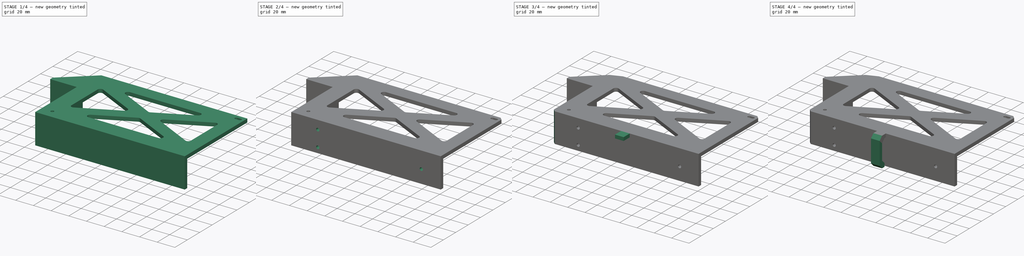
[diagram: build sequence overview — one tinted view per stage of 4, left to right]
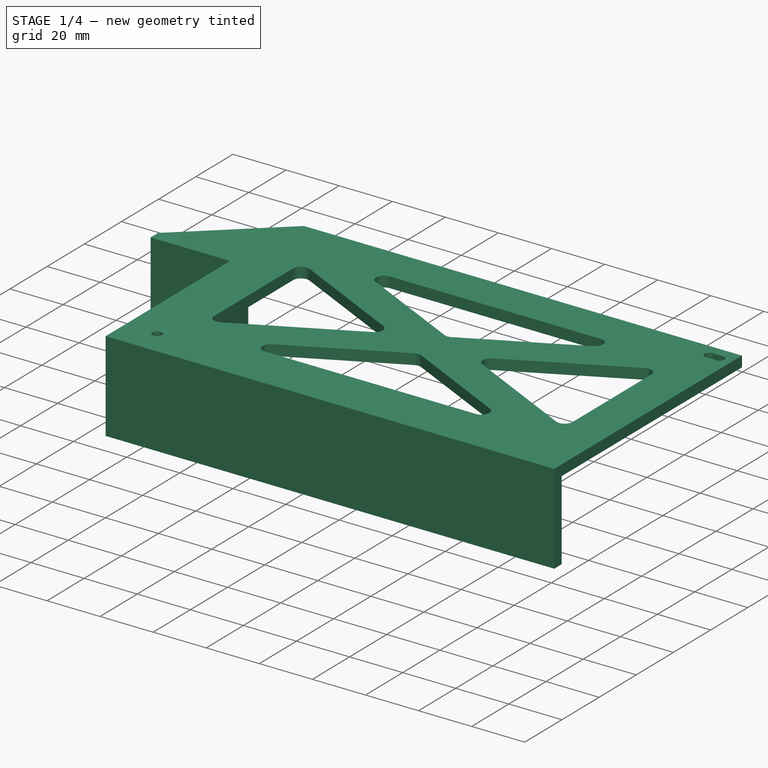
[diagram: stage 1 of 4 — iso view after this stage's code; geometry added in this stage tinted green]
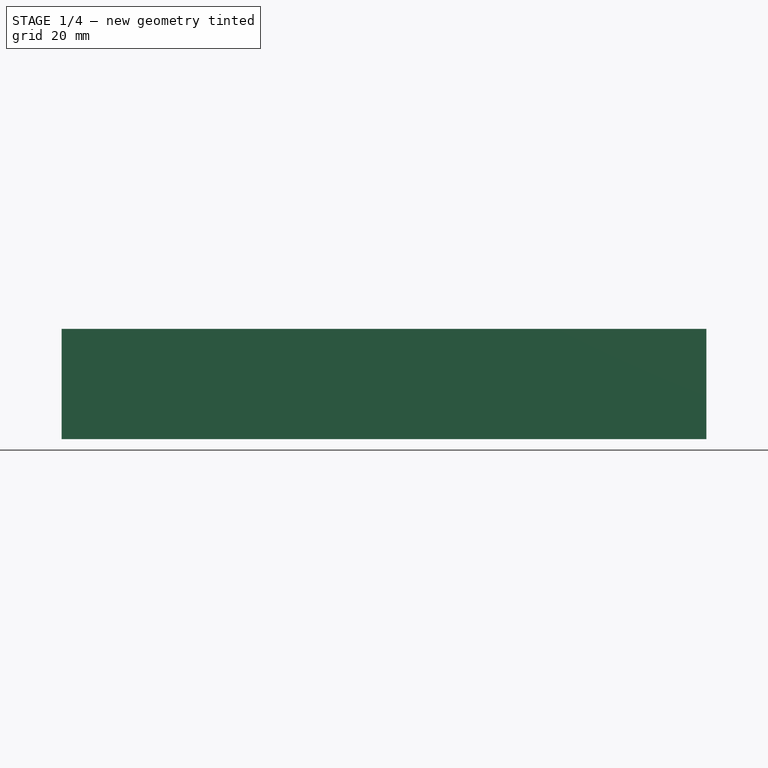
[diagram: stage 1 of 4 — front view after this stage's code; geometry added in this stage tinted green]
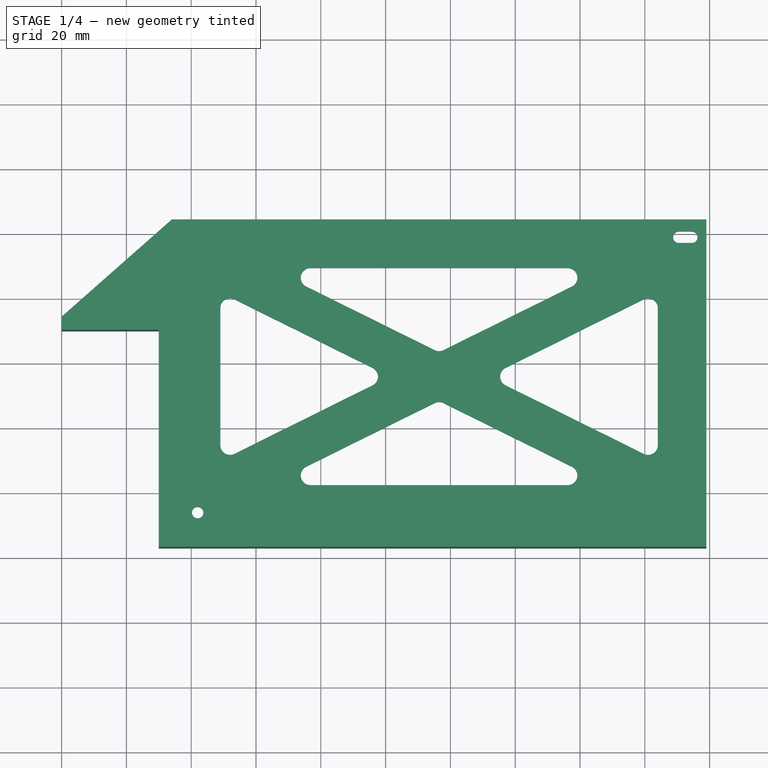
[diagram: stage 1 of 4 — top view after this stage's code; geometry added in this stage tinted green]
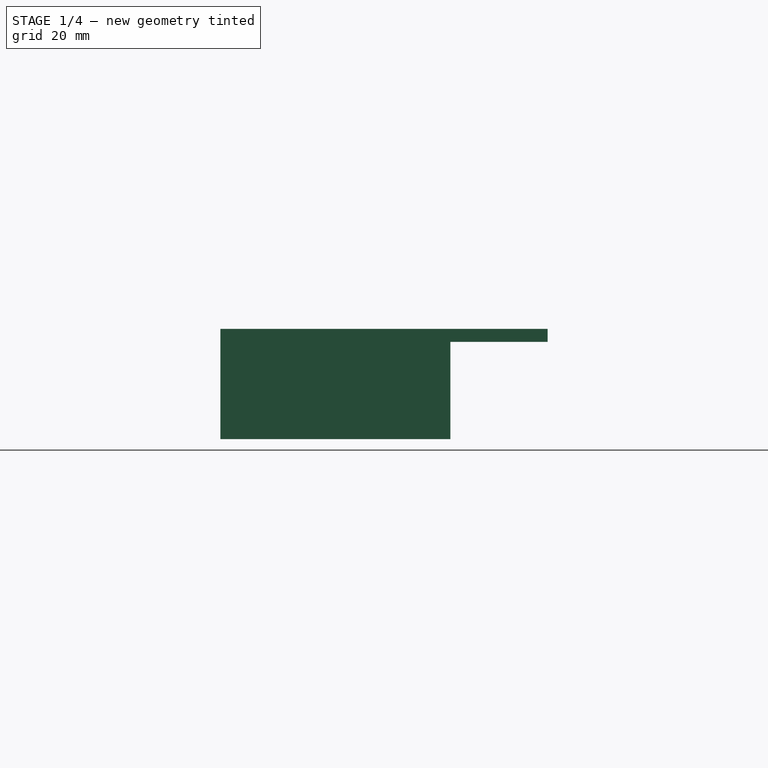
[diagram: stage 1 of 4 — right view after this stage's code; geometry added in this stage tinted green]
FCSTD DOCUMENT  (FreeCAD 1.0R39285 (Git))
Label: power-supply-bracket
License: All rights reserved
LicenseURL: https://en.wikipedia.org/wiki/All_rights_reserved
objects: Sketcher::SketchObject×9, PartDesign::Pad×5, PartDesign::Chamfer×4, PartDesign::Hole×2, PartDesign::Fillet×1, PartDesign::Body×1, App::Part×1
note: 55 computed .brp shape members not serialized (recipe doc carries the construction recipe); baked Part::Feature solids carry a one-line shape summary decoded from their .brp

FEATURE [Sketcher::SketchObject] Sketch
  ArcFitTolerance = 1e-06
  AttachmentSupport = -> [XY_Plane]
  FullyConstrained = true
  MakeInternals = false
  MapMode = 5
  sketch-geometry (106):
    g0: LineSegment [constr] StartX=0 StartY=0 StartZ=0 EndX=30 EndY=0 EndZ=0
    g1: LineSegment StartX=30 StartY=0 StartZ=0 EndX=30 EndY=30 EndZ=0
    g2: LineSegment StartX=30 StartY=30 StartZ=0 EndX=0 EndY=30 EndZ=0
    g3: LineSegment [constr] StartX=0 StartY=30 StartZ=0 EndX=0 EndY=0 EndZ=0
    g4: LineSegment StartX=0 StartY=30 StartZ=0 EndX=0 EndY=34 EndZ=0
    g5: LineSegment [constr] StartX=0 StartY=34 StartZ=0 EndX=34 EndY=34 EndZ=0
    g6: LineSegment [constr] StartX=34 StartY=34 StartZ=0 EndX=34 EndY=0 EndZ=0
    g7: LineSegment [constr] StartX=34 StartY=0 StartZ=0 EndX=30 EndY=0 EndZ=0
    g8: LineSegment [constr] StartX=34 StartY=34 StartZ=0 EndX=34 EndY=64 EndZ=0
    g9: LineSegment StartX=0 StartY=34 StartZ=0 EndX=34 EndY=64 EndZ=0
    g10: LineSegment [constr] StartX=34 StartY=64 StartZ=0 EndX=34 EndY=-33 EndZ=0
    g11: LineSegment [constr] StartX=34 StartY=-33 StartZ=0 EndX=199 EndY=-33 EndZ=0
    g12: LineSegment StartX=199 StartY=-33 StartZ=0 EndX=199 EndY=64 EndZ=0
    g13: LineSegment StartX=199 StartY=64 StartZ=0 EndX=34 EndY=64 EndZ=0
    g14: LineSegment [constr] StartX=34 StartY=64 StartZ=0 EndX=34 EndY=58.5 EndZ=0
    g15: LineSegment [constr] StartX=44.5 StartY=64 StartZ=0 EndX=34 EndY=64 EndZ=0
    g16: LineSegment [constr] StartX=199 StartY=-33 StartZ=0 EndX=199 EndY=-26.5 EndZ=0
    g17: LineSegment [constr] StartX=199 StartY=-26.5 StartZ=0 EndX=196 EndY=-26.5 EndZ=0
    g18: LineSegment [constr] StartX=196 StartY=-26.5 StartZ=0 EndX=196 EndY=-33 EndZ=0
    g19: LineSegment [constr] StartX=196 StartY=-33 StartZ=0 EndX=199 EndY=-33 EndZ=0
    g20: LineSegment [constr] StartX=199 StartY=64 StartZ=0 EndX=40 EndY=64 EndZ=0
    g21: LineSegment [constr] StartX=40 StartY=64 StartZ=0 EndX=40 EndY=-33 EndZ=0
    g22: LineSegment [constr] StartX=40 StartY=-33 StartZ=0 EndX=199 EndY=-33 EndZ=0
    g23: LineSegment [constr] StartX=199 StartY=-33 StartZ=0 EndX=199 EndY=64 EndZ=0
    g24: LineSegment [constr] StartX=40 StartY=64 StartZ=0 EndX=40 EndY=58.5 EndZ=0
    g25: LineSegment [constr] StartX=40 StartY=58.5 StartZ=0 EndX=44.5 EndY=58.5 EndZ=0
    g26: LineSegment [constr] StartX=44.5 StartY=58.5 StartZ=0 EndX=44.5 EndY=64 EndZ=0
    g27: LineSegment [constr] StartX=44.5 StartY=64 StartZ=0 EndX=40 EndY=64 EndZ=0
    g28: LineSegment [constr] StartX=34 StartY=-33 StartZ=0 EndX=30 EndY=-33 EndZ=0
    g29: LineSegment StartX=30 StartY=0 StartZ=0 EndX=30 EndY=-33 EndZ=0
    g30: LineSegment StartX=30 StartY=-33 StartZ=0 EndX=30 EndY=-37 EndZ=0
    g31: LineSegment StartX=30 StartY=-37 StartZ=0 EndX=199 EndY=-37 EndZ=0
    g32: LineSegment StartX=199 StartY=-37 StartZ=0 EndX=199 EndY=-33 EndZ=0
    g33: LineSegment [constr] StartX=34 StartY=64 StartZ=0 EndX=34 EndY=49 EndZ=0
    g34: LineSegment [constr] StartX=34 StartY=49 StartZ=0 EndX=49 EndY=49 EndZ=0
    g35: LineSegment [constr] StartX=49 StartY=49 StartZ=0 EndX=49 EndY=64 EndZ=0
    g36: LineSegment [constr] StartX=49 StartY=64 StartZ=0 EndX=34 EndY=64 EndZ=0
    g37: LineSegment [constr] StartX=199 StartY=64 StartZ=0 EndX=184 EndY=64 EndZ=0
    g38: LineSegment [constr] StartX=184 StartY=64 StartZ=0 EndX=184 EndY=49 EndZ=0
    g39: LineSegment [constr] StartX=184 StartY=49 StartZ=0 EndX=199 EndY=49 EndZ=0
    g40: LineSegment [constr] StartX=199 StartY=49 StartZ=0 EndX=199 EndY=64 EndZ=0
    g41: LineSegment [constr] StartX=34 StartY=-33 StartZ=0 EndX=49 EndY=-33 EndZ=0
    g42: LineSegment [constr] StartX=49 StartY=-33 StartZ=0 EndX=49 EndY=-18 EndZ=0
    g43: LineSegment [constr] StartX=49 StartY=-18 StartZ=0 EndX=34 EndY=-18 EndZ=0
    g44: LineSegment [constr] StartX=34 StartY=-18 StartZ=0 EndX=34 EndY=-33 EndZ=0
    g45: LineSegment [constr] StartX=199 StartY=-33 StartZ=0 EndX=199 EndY=-18 EndZ=0
    g46: LineSegment [constr] StartX=199 StartY=-18 StartZ=0 EndX=184 EndY=-18 EndZ=0
    g47: LineSegment [constr] StartX=184 StartY=-18 StartZ=0 EndX=184 EndY=-33 EndZ=0
    g48: LineSegment [constr] StartX=184 StartY=-33 StartZ=0 EndX=199 EndY=-33 EndZ=0
    g49: LineSegment [constr] StartX=49 StartY=49 StartZ=0 EndX=184 EndY=-18 EndZ=0
    g50: LineSegment [constr] StartX=49 StartY=-18 StartZ=0 EndX=184 EndY=49 EndZ=0
    g51: LineSegment [constr] StartX=109 StartY=8 StartZ=0 EndX=124 EndY=8 EndZ=0
    g52: LineSegment [constr] StartX=124 StartY=8 StartZ=0 EndX=124 EndY=23 EndZ=0
    g53: LineSegment [constr] StartX=124 StartY=23 StartZ=0 EndX=109 EndY=23 EndZ=0
    g54: LineSegment [constr] StartX=109 StartY=23 StartZ=0 EndX=109 EndY=8 EndZ=0
    g55: GeomPoint [constr] X=116.5 Y=15.5 Z=0
    g56: LineSegment [constr] StartX=49 StartY=49 StartZ=0 EndX=184 EndY=49 EndZ=0
    g57: LineSegment [constr] StartX=184 StartY=49 StartZ=0 EndX=184 EndY=-18 EndZ=0
    g58: LineSegment [constr] StartX=184 StartY=-18 StartZ=0 EndX=49 EndY=-18 EndZ=0
    g59: LineSegment [constr] StartX=49 StartY=-18 StartZ=0 EndX=49 EndY=49 EndZ=0
    g60: LineSegment [constr] StartX=116.5 StartY=23 StartZ=0 EndX=49 EndY=56.5 EndZ=0
    g61: LineSegment [constr] StartX=116.5 StartY=23 StartZ=0 EndX=184 EndY=56.5 EndZ=0
    g62: LineSegment [constr] StartX=116.5 StartY=8 StartZ=0 EndX=49 EndY=-25.5 EndZ=0
    g63: LineSegment [constr] StartX=116.5 StartY=8 StartZ=0 EndX=184 EndY=-25.5 EndZ=0
    g64: LineSegment [constr] StartX=49 StartY=49 StartZ=0 EndX=64 EndY=49 EndZ=0
    g65: LineSegment [constr] StartX=49 StartY=-18 StartZ=0 EndX=64 EndY=-18 EndZ=0
    g66: LineSegment [constr] StartX=184 StartY=-18 StartZ=0 EndX=169 EndY=-18 EndZ=0
    g67: LineSegment [constr] StartX=184 StartY=49 StartZ=0 EndX=169 EndY=49 EndZ=0
    g68: LineSegment StartX=64 StartY=49 StartZ=0 EndX=116.5 EndY=23 EndZ=0
    g69: LineSegment StartX=169 StartY=49 StartZ=0 EndX=116.5 EndY=23 EndZ=0
    g70: LineSegment [constr] StartX=49 StartY=49 StartZ=0 EndX=116.5 EndY=15.5 EndZ=0
    g71: LineSegment [constr] StartX=116.5 StartY=15.5 StartZ=0 EndX=49 EndY=-18 EndZ=0
    g72: LineSegment [constr] StartX=49 StartY=49 StartZ=0 EndX=49 EndY=41.5 EndZ=0
    g73: LineSegment [constr] StartX=116.5 StartY=8 StartZ=0 EndX=49 EndY=41.5 EndZ=0
    g74: LineSegment [constr] StartX=184 StartY=49 StartZ=0 EndX=184 EndY=41.5 EndZ=0
    g75: LineSegment [constr] StartX=184 StartY=41.5 StartZ=0 EndX=116.5 EndY=8 EndZ=0
    g76: LineSegment [constr] StartX=49 StartY=-18 StartZ=0 EndX=49 EndY=-10.5 EndZ=0
    g77: LineSegment [constr] StartX=184 StartY=-18 StartZ=0 EndX=184 EndY=-10.5 EndZ=0
    g78: LineSegment [constr] StartX=184 StartY=-10.5 StartZ=0 EndX=116.5 EndY=23 EndZ=0
    g79: LineSegment [constr] StartX=116.5 StartY=23 StartZ=0 EndX=49 EndY=-10.5 EndZ=0
    g80: LineSegment StartX=64 StartY=49 StartZ=0 EndX=169 EndY=49 EndZ=0
    g81: LineSegment StartX=116.5 StartY=8 StartZ=0 EndX=64 EndY=-18 EndZ=0
    g82: LineSegment StartX=169 StartY=-18 StartZ=0 EndX=116.5 EndY=8 EndZ=0
    g83: LineSegment StartX=64 StartY=-18 StartZ=0 EndX=169 EndY=-18 EndZ=0
    g84: LineSegment [constr] StartX=116.5 StartY=15.5 StartZ=0 EndX=101.388 EndY=15.5 EndZ=0
    g85: LineSegment [constr] StartX=116.5 StartY=15.5 StartZ=0 EndX=131.612 EndY=15.5 EndZ=0
    g86: LineSegment StartX=49 StartY=41.5 StartZ=0 EndX=101.388 EndY=15.5 EndZ=0
    g87: LineSegment StartX=101.388 StartY=15.5 StartZ=0 EndX=49 EndY=-10.5 EndZ=0
    g88: LineSegment StartX=49 StartY=-10.5 StartZ=0 EndX=49 EndY=41.5 EndZ=0
    g89: LineSegment StartX=184 StartY=41.5 StartZ=0 EndX=131.612 EndY=15.5 EndZ=0
    g90: LineSegment StartX=131.612 StartY=15.5 StartZ=0 EndX=184 EndY=-10.5 EndZ=0
    g91: LineSegment StartX=184 StartY=-10.5 StartZ=0 EndX=184 EndY=41.5 EndZ=0
    g92: Circle [constr] CenterX=44.5 CenterY=58.5 CenterZ=0 NormalX=0 NormalY=0 NormalZ=1 AngleXU=0 Radius=1.75
    g93: Circle [constr] CenterX=196 CenterY=-26.5 CenterZ=0 NormalX=0 NormalY=0 NormalZ=1 AngleXU=0 Radius=1.75
    g94: LineSegment [constr] StartX=199 StartY=64 StartZ=0 EndX=194.5 EndY=64 EndZ=0
    g95: LineSegment [constr] StartX=194.5 StartY=64 StartZ=0 EndX=194.5 EndY=58.5 EndZ=0
    g96: LineSegment [constr] StartX=194.5 StartY=58.5 StartZ=0 EndX=199 EndY=58.5 EndZ=0
    g97: LineSegment [constr] StartX=199 StartY=58.5 StartZ=0 EndX=199 EndY=64 EndZ=0
    g98: Circle [constr] CenterX=194.5 CenterY=58.5 CenterZ=0 NormalX=0 NormalY=0 NormalZ=1 AngleXU=0 Radius=1.75
    g99: LineSegment [constr] StartX=194.5 StartY=58.5 StartZ=0 EndX=42 EndY=58.5 EndZ=0
    g100: LineSegment [constr] StartX=42 StartY=58.5 StartZ=0 EndX=42 EndY=-26.5 EndZ=0
    g101: Circle CenterX=42 CenterY=-26.5 CenterZ=0 NormalX=0 NormalY=0 NormalZ=1 AngleXU=0 Radius=1.75
    g102: ArcOfCircle CenterX=194.5 CenterY=58.5 CenterZ=0 NormalX=0 NormalY=0 NormalZ=1 AngleXU=0 Radius=1.75 StartAngle=4.71239 EndAngle=7.85398
    g103: ArcOfCircle CenterX=190.5 CenterY=58.5 CenterZ=0 NormalX=0 NormalY=0 NormalZ=1 AngleXU=0 Radius=1.75 StartAngle=1.5708 EndAngle=4.71239
    g104: LineSegment StartX=194.5 StartY=56.75 StartZ=0 EndX=190.5 EndY=56.75 EndZ=0
    g105: LineSegment StartX=194.5 StartY=60.25 StartZ=0 EndX=190.5 EndY=60.25 EndZ=0
  constraints (266):
    c: Coincident(g0,g1)
    c: Coincident(g1,g2)
    c: Coincident(g2,g3)
    c: Coincident(g3,g0)
    c: Horizontal(g0)
    c: Horizontal(g2)
    c: Vertical(g1)
    c: Vertical(g3)
    c: Distance(g1,g3) = 30
    c: Distance(g0,g2) = 30
    c: Coincident(g0,g-1)
    c: Distance(g4) = 4
    c: Coincident(g4,g2)
    c: PointOnObject(g4,g-2)
    c: Distance(g5) = 34
    c: Coincident(g5,g4)
    c: Horizontal(g5)
    c: Coincident(g6,g5)
    c: PointOnObject(g6,g-1)
    c: Vertical(g6)
    c: Coincident(g7,g6)
    c: Coincident(g7,g0)
    c: Distance(g8) = 30
    c: Coincident(g8,g5)
    c: Vertical(g8)
    c: Coincident(g9,g4)
    c: Coincident(g9,g8)
    c: Coincident(g10,g11)
    c: Coincident(g11,g12)
    c: Coincident(g12,g13)
    c: Coincident(g13,g10)
    c: Vertical(g10)
    c: Vertical(g12)
    c: Horizontal(g11)
    c: Horizontal(g13)
    c: Distance(g10,g12) = 165
    c: Distance(g11,g13) = 97
    c: Coincident(g10,g8)
    c: Coincident(g15,g14)
    c: Vertical(g14)
    c: Horizontal(g15)
    c: Distance(g14,g15) = 10.5
    c: Distance(g14,g15) = 5.5
    c: Coincident(g14,g8)
    c: Coincident(g16,g17)
    c: Coincident(g17,g18)
    c: Coincident(g18,g19)
    c: Coincident(g19,g16)
    c: Vertical(g16)
    c: Vertical(g18)
    c: Horizontal(g17)
    c: Horizontal(g19)
    c: Distance(g16,g18) = 3
    c: Distance(g17,g19) = 6.5
    c: Coincident(g16,g11)
    c: Coincident(g20,g21)
    c: Coincident(g21,g22)
    c: Coincident(g22,g23)
    c: Coincident(g23,g20)
    c: Horizontal(g20)
    c: Horizontal(g22)
    c: Vertical(g21)
    c: Vertical(g23)
    c: Distance(g21,g23) = 159
    c: Coincident(g20,g12)
    c: PointOnObject(g21,g11)
    c: Coincident(g24,g25)
    c: Coincident(g25,g26)
    c: Coincident(g26,g27)
    c: Coincident(g27,g24)
    c: Vertical(g24)
    c: Vertical(g26)
    c: Horizontal(g25)
    c: Horizontal(g27)
    c: Distance(g24,g26) = 4.5
    c: Distance(g25,g27) = 5.5
    c: Coincident(g24,g20)
    c: Distance(g28) = 4
    c: Coincident(g28,g10)
    c: Horizontal(g28)
    c: Coincident(g29,g0)
    c: Coincident(g29,g28)
    c: Distance(g30) = 4
    c: Coincident(g30,g28)
    c: Vertical(g30)
    c: Distance(g31) = 169
    c: Coincident(g31,g30)
    c: Horizontal(g31)
    c: Coincident(g32,g31)
    c: Coincident(g32,g11)
    c: Coincident(g33,g34)
    c: Coincident(g34,g35)
    c: Coincident(g35,g36)
    c: Coincident(g36,g33)
    c: Vertical(g33)
    c: Vertical(g35)
    c: Horizontal(g34)
    c: Horizontal(g36)
    c: Distance(g33,g35) = 15
    c: Distance(g34,g36) = 15
    c: Coincident(g33,g8)
    c: Coincident(g37,g38)
    c: Coincident(g38,g39)
    c: Coincident(g39,g40)
    c: Coincident(g40,g37)
    c: Horizontal(g37)
    c: Horizontal(g39)
    c: Vertical(g38)
    c: Vertical(g40)
    c: Distance(g38,g40) = 15
    c: Distance(g37,g39) = 15
    c: Coincident(g37,g12)
    c: Coincident(g41,g42)
    c: Coincident(g42,g43)
    c: Coincident(g43,g44)
    c: Coincident(g44,g41)
    c: Horizontal(g41)
    c: Horizontal(g43)
    c: Vertical(g42)
    c: Vertical(g44)
    c: Distance(g42,g44) = 15
    c: Distance(g41,g43) = 15
    c: Coincident(g41,g10)
    c: Coincident(g45,g46)
    c: Coincident(g46,g47)
    c: Coincident(g47,g48)
    c: Coincident(g48,g45)
    c: Vertical(g45)
    c: Vertical(g47)
    c: Horizontal(g46)
    c: Horizontal(g48)
    c: Distance(g45,g47) = 15
    c: Distance(g46,g48) = 15
    c: Coincident(g45,g11)
    c: Coincident(g49,g34)
    c: Coincident(g49,g46)
    c: Coincident(g50,g42)
    c: Coincident(g50,g38)
    c: Coincident(g51,g52)
    c: Coincident(g52,g53)
    c: Coincident(g53,g54)
    c: Coincident(g54,g51)
    c: Horizontal(g51)
    c: Horizontal(g53)
    c: Vertical(g52)
    c: Vertical(g54)
    c: Symmetric(g53,g51,g55)
    c: Distance(g52,g54) = 15
    c: Distance(g51,g53) = 15
    c: Symmetric(g49,g49,g55)
    c: Coincident(g56,g34)
    c: Coincident(g56,g38)
    c: Coincident(g57,g38)
    c: Coincident(g57,g46)
    c: Coincident(g58,g46)
    c: Coincident(g58,g42)
    c: Coincident(g59,g42)
    c: Coincident(g59,g34)
    c: Symmetric(g53,g53,g60)
    c: Symmetric(g35,g35,g60)
    c: Coincident(g61,g60)
    c: Symmetric(g38,g38,g61)
    c: Symmetric(g51,g51,g62)
    c: Symmetric(g42,g42,g62)
    c: Coincident(g63,g62)
    c: Symmetric(g47,g47,g63)
    c: Distance(g64) = 15
    c: Coincident(g64,g34)
    c: PointOnObject(g64,g56)
    c: Distance(g65) = 15
    c: Coincident(g65,g42)
    c: PointOnObject(g65,g58)
    c: Distance(g66) = 15
    c: Coincident(g66,g46)
    c: PointOnObject(g66,g58)
    c: Distance(g67) = 15
    c: Coincident(g67,g38)
    c: PointOnObject(g67,g56)
    c: Coincident(g68,g64)
    c: Coincident(g68,g60)
    c: Coincident(g69,g67)
    c: Coincident(g69,g60)
    c: Coincident(g70,g34)
    c: Coincident(g70,g55)
    c: Coincident(g71,g55)
    c: Coincident(g71,g42)
    c: Distance(g72) = 7.5
    c: Coincident(g72,g34)
    c: PointOnObject(g72,g59)
    c: Coincident(g73,g62)
    c: Coincident(g73,g72)
    c: Distance(g74) = 7.5
    c: Coincident(g74,g38)
    c: PointOnObject(g74,g57)
    c: Coincident(g75,g74)
    c: Coincident(g75,g62)
    c: Distance(g76) = 7.5
    c: Coincident(g76,g42)
    c: PointOnObject(g76,g59)
    c: Distance(g77) = 7.5
    c: Coincident(g77,g46)
    c: PointOnObject(g77,g57)
    c: Coincident(g78,g77)
    c: Coincident(g78,g60)
    c: Coincident(g79,g60)
    c: Coincident(g79,g76)
    c: Coincident(g80,g64)
    c: Coincident(g80,g67)
    c: Coincident(g81,g62)
    c: Coincident(g81,g65)
    c: Coincident(g82,g66)
    c: Coincident(g82,g62)
    c: Coincident(g83,g65)
    c: Coincident(g83,g66)
    c: Coincident(g84,g55)
    c: PointOnObject(g84,g73)
    c: Horizontal(g84)
    c: Coincident(g85,g55)
    c: PointOnObject(g85,g75)
    c: Horizontal(g85)
    c: Coincident(g86,g72)
    c: Coincident(g86,g84)
    c: Coincident(g87,g84)
    c: Coincident(g87,g76)
    c: Coincident(g88,g76)
    c: Coincident(g88,g72)
    c: Coincident(g89,g74)
    c: Coincident(g89,g85)
    c: Coincident(g90,g85)
    c: Coincident(g90,g77)
    c: Coincident(g91,g77)
    c: Coincident(g91,g74)
    c: Diameter(g92) = 3.5
    c: Coincident(g92,g25)
    c: Diameter(g93) = 3.5
    c: Coincident(g93,g17)
    c: Coincident(g94,g95)
    c: Coincident(g95,g96)
    c: Coincident(g96,g97)
    c: Coincident(g97,g94)
    c: Horizontal(g94)
    c: Horizontal(g96)
    c: Vertical(g95)
    c: Vertical(g97)
    c: Distance(g95,g97) = 4.5
    c: Distance(g94,g96) = 5.5
    c: Coincident(g94,g12)
    c: Diameter(g98) = 3.5
    c: Coincident(g98,g95)
    c: Distance(g99) = 152.5
    c: Coincident(g99,g95)
    c: PointOnObject(g99,g25)
    c: Distance(g100) = 85
    c: Coincident(g100,g99)
    c: Vertical(g100)
    c: Diameter(g101) = 3.5
    c: Coincident(g101,g100)
    c: Tangent(g102,g104) = 1.5708
    c: Tangent(g102,g105) = -1.5708
    c: Tangent(g103,g104) = 1.5708
    c: Tangent(g103,g105) = -1.5708
    c: Equal(g102,g103)
    c: Horizontal(g105)
    c: Distance(g102,g103) = 4
    c: Radius(g102) = 1.75
    c: Coincident(g102,g95)
FEATURE [PartDesign::Pad] Pad
  Direction = (0,0,1)
  Length = 4
  Length2 = 10
  Profile = -> Sketch
  ReferenceAxis = -> Sketch [N_Axis]
  Refine = true
  Suppressed = false
  Type = 0
FEATURE [Sketcher::SketchObject] Sketch001
  ArcFitTolerance = 1e-06
  AttachmentSupport = -> [Pad]
  FullyConstrained = true
  MakeInternals = false
  MapMode = 5
  Placement = pos=(0,0,4) rot=(0,0,1;0rad)
  sketch-geometry (96):
    g0: LineSegment [constr] StartX=0 StartY=0 StartZ=0 EndX=30 EndY=0 EndZ=0
    g1: LineSegment StartX=30 StartY=0 StartZ=0 EndX=30 EndY=30 EndZ=0
    g2: LineSegment StartX=30 StartY=30 StartZ=0 EndX=0 EndY=30 EndZ=0
    g3: LineSegment [constr] StartX=0 StartY=30 StartZ=0 EndX=0 EndY=0 EndZ=0
    g4: LineSegment StartX=0 StartY=30 StartZ=0 EndX=0 EndY=34 EndZ=0
    g5: LineSegment [constr] StartX=0 StartY=34 StartZ=0 EndX=34 EndY=34 EndZ=0
    g6: LineSegment [constr] StartX=34 StartY=34 StartZ=0 EndX=34 EndY=0 EndZ=0
    g7: LineSegment [constr] StartX=34 StartY=0 StartZ=0 EndX=30 EndY=0 EndZ=0
    g8: LineSegment [constr] StartX=34 StartY=34 StartZ=0 EndX=34 EndY=64 EndZ=0
    g9: LineSegment [constr] StartX=0 StartY=34 StartZ=0 EndX=34 EndY=64 EndZ=0
    g10: LineSegment [constr] StartX=34 StartY=64 StartZ=0 EndX=34 EndY=-33 EndZ=0
    g11: LineSegment [constr] StartX=34 StartY=-33 StartZ=0 EndX=199 EndY=-33 EndZ=0
    g12: LineSegment [constr] StartX=199 StartY=-33 StartZ=0 EndX=199 EndY=64 EndZ=0
    g13: LineSegment [constr] StartX=199 StartY=64 StartZ=0 EndX=34 EndY=64 EndZ=0
    g14: LineSegment [constr] StartX=34 StartY=64 StartZ=0 EndX=34 EndY=58.5 EndZ=0
    g15: LineSegment [constr] StartX=44.5 StartY=64 StartZ=0 EndX=34 EndY=64 EndZ=0
    g16: LineSegment [constr] StartX=199 StartY=-33 StartZ=0 EndX=199 EndY=-26.5 EndZ=0
    g17: LineSegment [constr] StartX=199 StartY=-26.5 StartZ=0 EndX=196 EndY=-26.5 EndZ=0
    g18: LineSegment [constr] StartX=196 StartY=-26.5 StartZ=0 EndX=196 EndY=-33 EndZ=0
    g19: LineSegment [constr] StartX=196 StartY=-33 StartZ=0 EndX=199 EndY=-33 EndZ=0
    g20: LineSegment [constr] StartX=199 StartY=64 StartZ=0 EndX=40 EndY=64 EndZ=0
    g21: LineSegment [constr] StartX=40 StartY=64 StartZ=0 EndX=40 EndY=-33 EndZ=0
    g22: LineSegment [constr] StartX=40 StartY=-33 StartZ=0 EndX=199 EndY=-33 EndZ=0
    g23: LineSegment [constr] StartX=199 StartY=-33 StartZ=0 EndX=199 EndY=64 EndZ=0
    g24: LineSegment [constr] StartX=40 StartY=64 StartZ=0 EndX=40 EndY=58.5 EndZ=0
    g25: LineSegment [constr] StartX=40 StartY=58.5 StartZ=0 EndX=44.5 EndY=58.5 EndZ=0
    g26: LineSegment [constr] StartX=44.5 StartY=58.5 StartZ=0 EndX=44.5 EndY=64 EndZ=0
    g27: LineSegment [constr] StartX=44.5 StartY=64 StartZ=0 EndX=40 EndY=64 EndZ=0
    g28: LineSegment [constr] StartX=34 StartY=-33 StartZ=0 EndX=30 EndY=-33 EndZ=0
    g29: LineSegment StartX=30 StartY=0 StartZ=0 EndX=30 EndY=-33 EndZ=0
    g30: LineSegment StartX=30 StartY=-33 StartZ=0 EndX=30 EndY=-37 EndZ=0
    g31: LineSegment StartX=30 StartY=-37 StartZ=0 EndX=199 EndY=-37 EndZ=0
    g32: LineSegment [constr] StartX=199 StartY=-37 StartZ=0 EndX=199 EndY=-33 EndZ=0
    g33: LineSegment [constr] StartX=34 StartY=64 StartZ=0 EndX=34 EndY=49 EndZ=0
    g34: LineSegment [constr] StartX=34 StartY=49 StartZ=0 EndX=49 EndY=49 EndZ=0
    g35: LineSegment [constr] StartX=49 StartY=49 StartZ=0 EndX=49 EndY=64 EndZ=0
    g36: LineSegment [constr] StartX=49 StartY=64 StartZ=0 EndX=34 EndY=64 EndZ=0
    g37: LineSegment [constr] StartX=199 StartY=64 StartZ=0 EndX=184 EndY=64 EndZ=0
    g38: LineSegment [constr] StartX=184 StartY=64 StartZ=0 EndX=184 EndY=49 EndZ=0
    g39: LineSegment [constr] StartX=184 StartY=49 StartZ=0 EndX=199 EndY=49 EndZ=0
    g40: LineSegment [constr] StartX=199 StartY=49 StartZ=0 EndX=199 EndY=64 EndZ=0
    g41: LineSegment [constr] StartX=34 StartY=-33 StartZ=0 EndX=49 EndY=-33 EndZ=0
    g42: LineSegment [constr] StartX=49 StartY=-33 StartZ=0 EndX=49 EndY=-18 EndZ=0
    g43: LineSegment [constr] StartX=49 StartY=-18 StartZ=0 EndX=34 EndY=-18 EndZ=0
    g44: LineSegment [constr] StartX=34 StartY=-18 StartZ=0 EndX=34 EndY=-33 EndZ=0
    g45: LineSegment [constr] StartX=199 StartY=-33 StartZ=0 EndX=199 EndY=-18 EndZ=0
    g46: LineSegment [constr] StartX=199 StartY=-18 StartZ=0 EndX=184 EndY=-18 EndZ=0
    g47: LineSegment [constr] StartX=184 StartY=-18 StartZ=0 EndX=184 EndY=-33 EndZ=0
    g48: LineSegment [constr] StartX=184 StartY=-33 StartZ=0 EndX=199 EndY=-33 EndZ=0
    g49: LineSegment [constr] StartX=49 StartY=49 StartZ=0 EndX=184 EndY=-18 EndZ=0
    g50: LineSegment [constr] StartX=49 StartY=-18 StartZ=0 EndX=184 EndY=49 EndZ=0
    g51: LineSegment [constr] StartX=109 StartY=8 StartZ=0 EndX=124 EndY=8 EndZ=0
    g52: LineSegment [constr] StartX=124 StartY=8 StartZ=0 EndX=124 EndY=23 EndZ=0
    g53: LineSegment [constr] StartX=124 StartY=23 StartZ=0 EndX=109 EndY=23 EndZ=0
    g54: LineSegment [constr] StartX=109 StartY=23 StartZ=0 EndX=109 EndY=8 EndZ=0
    g55: GeomPoint [constr] X=116.5 Y=15.5 Z=0
    g56: LineSegment [constr] StartX=49 StartY=49 StartZ=0 EndX=184 EndY=49 EndZ=0
    g57: LineSegment [constr] StartX=184 StartY=49 StartZ=0 EndX=184 EndY=-18 EndZ=0
    g58: LineSegment [constr] StartX=184 StartY=-18 StartZ=0 EndX=49 EndY=-18 EndZ=0
    g59: LineSegment [constr] StartX=49 StartY=-18 StartZ=0 EndX=49 EndY=49 EndZ=0
    g60: LineSegment [constr] StartX=116.5 StartY=23 StartZ=0 EndX=49 EndY=56.5 EndZ=0
    g61: LineSegment [constr] StartX=116.5 StartY=23 StartZ=0 EndX=184 EndY=56.5 EndZ=0
    g62: LineSegment [constr] StartX=116.5 StartY=8 StartZ=0 EndX=49 EndY=-25.5 EndZ=0
    g63: LineSegment [constr] StartX=116.5 StartY=8 StartZ=0 EndX=184 EndY=-25.5 EndZ=0
    g64: LineSegment [constr] StartX=49 StartY=49 StartZ=0 EndX=64 EndY=49 EndZ=0
    g65: LineSegment [constr] StartX=49 StartY=-18 StartZ=0 EndX=64 EndY=-18 EndZ=0
    g66: LineSegment [constr] StartX=184 StartY=-18 StartZ=0 EndX=169 EndY=-18 EndZ=0
    g67: LineSegment [constr] StartX=184 StartY=49 StartZ=0 EndX=169 EndY=49 EndZ=0
    g68: LineSegment [constr] StartX=64 StartY=49 StartZ=0 EndX=116.5 EndY=23 EndZ=0
    g69: LineSegment [constr] StartX=169 StartY=49 StartZ=0 EndX=116.5 EndY=23 EndZ=0
    g70: LineSegment [constr] StartX=49 StartY=49 StartZ=0 EndX=116.5 EndY=15.5 EndZ=0
    g71: LineSegment [constr] StartX=116.5 StartY=15.5 StartZ=0 EndX=49 EndY=-18 EndZ=0
    g72: LineSegment [constr] StartX=49 StartY=49 StartZ=0 EndX=49 EndY=41.5 EndZ=0
    g73: LineSegment [constr] StartX=116.5 StartY=8 StartZ=0 EndX=49 EndY=41.5 EndZ=0
    g74: LineSegment [constr] StartX=184 StartY=49 StartZ=0 EndX=184 EndY=41.5 EndZ=0
    g75: LineSegment [constr] StartX=184 StartY=41.5 StartZ=0 EndX=116.5 EndY=8 EndZ=0
    g76: LineSegment [constr] StartX=49 StartY=-18 StartZ=0 EndX=49 EndY=-10.5 EndZ=0
    g77: LineSegment [constr] StartX=184 StartY=-18 StartZ=0 EndX=184 EndY=-10.5 EndZ=0
    g78: LineSegment [constr] StartX=184 StartY=-10.5 StartZ=0 EndX=116.5 EndY=23 EndZ=0
    g79: LineSegment [constr] StartX=116.5 StartY=23 StartZ=0 EndX=49 EndY=-10.5 EndZ=0
    g80: LineSegment [constr] StartX=64 StartY=49 StartZ=0 EndX=169 EndY=49 EndZ=0
    g81: LineSegment [constr] StartX=116.5 StartY=8 StartZ=0 EndX=64 EndY=-18 EndZ=0
    g82: LineSegment [constr] StartX=169 StartY=-18 StartZ=0 EndX=116.5 EndY=8 EndZ=0
    g83: LineSegment [constr] StartX=64 StartY=-18 StartZ=0 EndX=169 EndY=-18 EndZ=0
    g84: LineSegment [constr] StartX=116.5 StartY=15.5 StartZ=0 EndX=101.388 EndY=15.5 EndZ=0
    g85: LineSegment [constr] StartX=116.5 StartY=15.5 StartZ=0 EndX=131.612 EndY=15.5 EndZ=0
    g86: LineSegment [constr] StartX=49 StartY=41.5 StartZ=0 EndX=101.388 EndY=15.5 EndZ=0
    g87: LineSegment [constr] StartX=101.388 StartY=15.5 StartZ=0 EndX=49 EndY=-10.5 EndZ=0
    g88: LineSegment [constr] StartX=49 StartY=-10.5 StartZ=0 EndX=49 EndY=41.5 EndZ=0
    g89: LineSegment [constr] StartX=184 StartY=41.5 StartZ=0 EndX=131.612 EndY=15.5 EndZ=0
    g90: LineSegment [constr] StartX=131.612 StartY=15.5 StartZ=0 EndX=184 EndY=-10.5 EndZ=0
    g91: LineSegment [constr] StartX=184 StartY=-10.5 StartZ=0 EndX=184 EndY=41.5 EndZ=0
    g92: LineSegment StartX=0 StartY=34 StartZ=0 EndX=34 EndY=34 EndZ=0
    g93: LineSegment StartX=34 StartY=34 StartZ=0 EndX=34 EndY=-33 EndZ=0
    g94: LineSegment StartX=199 StartY=-33 StartZ=0 EndX=34 EndY=-33 EndZ=0
    g95: LineSegment StartX=199 StartY=-33 StartZ=0 EndX=199 EndY=-37 EndZ=0
  constraints (240):
    c: Coincident(g0,g1)
    c: Coincident(g1,g2)
    c: Coincident(g2,g3)
    c: Coincident(g3,g0)
    c: Horizontal(g0)
    c: Horizontal(g2)
    c: Vertical(g1)
    c: Vertical(g3)
    c: Distance(g1,g3) = 30
    c: Distance(g0,g2) = 30
    c: Coincident(g0,g-1)
    c: Distance(g4) = 4
    c: Coincident(g4,g2)
    c: PointOnObject(g4,g-2)
    c: Distance(g5) = 34
    c: Coincident(g5,g4)
    c: Horizontal(g5)
    c: Coincident(g6,g5)
    c: PointOnObject(g6,g-1)
    c: Vertical(g6)
    c: Coincident(g7,g6)
    c: Coincident(g7,g0)
    c: Distance(g8) = 30
    c: Coincident(g8,g5)
    c: Vertical(g8)
    c: Coincident(g9,g4)
    c: Coincident(g9,g8)
    c: Coincident(g10,g11)
    c: Coincident(g11,g12)
    c: Coincident(g12,g13)
    c: Coincident(g13,g10)
    c: Vertical(g10)
    c: Vertical(g12)
    c: Horizontal(g11)
    c: Horizontal(g13)
    c: Distance(g10,g12) = 165
    c: Distance(g11,g13) = 97
    c: Coincident(g10,g8)
    c: Coincident(g15,g14)
    c: Vertical(g14)
    c: Horizontal(g15)
    c: Distance(g14,g15) = 10.5
    c: Distance(g14,g15) = 5.5
    c: Coincident(g14,g8)
    c: Coincident(g16,g17)
    c: Coincident(g17,g18)
    c: Coincident(g18,g19)
    c: Coincident(g19,g16)
    c: Vertical(g16)
    c: Vertical(g18)
    c: Horizontal(g17)
    c: Horizontal(g19)
    c: Distance(g16,g18) = 3
    c: Distance(g17,g19) = 6.5
    c: Coincident(g16,g11)
    c: Coincident(g20,g21)
    c: Coincident(g21,g22)
    c: Coincident(g22,g23)
    c: Coincident(g23,g20)
    c: Horizontal(g20)
    c: Horizontal(g22)
    c: Vertical(g21)
    c: Vertical(g23)
    c: Distance(g21,g23) = 159
    c: Coincident(g20,g12)
    c: PointOnObject(g21,g11)
    c: Coincident(g24,g25)
    c: Coincident(g25,g26)
    c: Coincident(g26,g27)
    c: Coincident(g27,g24)
    c: Vertical(g24)
    c: Vertical(g26)
    c: Horizontal(g25)
    c: Horizontal(g27)
    c: Distance(g24,g26) = 4.5
    c: Distance(g25,g27) = 5.5
    c: Coincident(g24,g20)
    c: Distance(g28) = 4
    c: Coincident(g28,g10)
    c: Horizontal(g28)
    c: Coincident(g29,g0)
    c: Coincident(g29,g28)
    c: Distance(g30) = 4
    c: Coincident(g30,g28)
    c: Vertical(g30)
    c: Distance(g31) = 169
    c: Coincident(g31,g30)
    c: Horizontal(g31)
    c: Coincident(g32,g31)
    c: Coincident(g32,g11)
    c: Coincident(g33,g34)
    c: Coincident(g34,g35)
    c: Coincident(g35,g36)
    c: Coincident(g36,g33)
    c: Vertical(g33)
    c: Vertical(g35)
    c: Horizontal(g34)
    c: Horizontal(g36)
    c: Distance(g33,g35) = 15
    c: Distance(g34,g36) = 15
    c: Coincident(g33,g8)
    c: Coincident(g37,g38)
    c: Coincident(g38,g39)
    c: Coincident(g39,g40)
    c: Coincident(g40,g37)
    c: Horizontal(g37)
    c: Horizontal(g39)
    c: Vertical(g38)
    c: Vertical(g40)
    c: Distance(g38,g40) = 15
    c: Distance(g37,g39) = 15
    c: Coincident(g37,g12)
    c: Coincident(g41,g42)
    c: Coincident(g42,g43)
    c: Coincident(g43,g44)
    c: Coincident(g44,g41)
    c: Horizontal(g41)
    c: Horizontal(g43)
    c: Vertical(g42)
    c: Vertical(g44)
    c: Distance(g42,g44) = 15
    c: Distance(g41,g43) = 15
    c: Coincident(g41,g10)
    c: Coincident(g45,g46)
    c: Coincident(g46,g47)
    c: Coincident(g47,g48)
    c: Coincident(g48,g45)
    c: Vertical(g45)
    c: Vertical(g47)
    c: Horizontal(g46)
    c: Horizontal(g48)
    c: Distance(g45,g47) = 15
    c: Distance(g46,g48) = 15
    c: Coincident(g45,g11)
    c: Coincident(g49,g34)
    c: Coincident(g49,g46)
    c: Coincident(g50,g42)
    c: Coincident(g50,g38)
    c: Coincident(g51,g52)
    c: Coincident(g52,g53)
    c: Coincident(g53,g54)
    c: Coincident(g54,g51)
    c: Horizontal(g51)
    c: Horizontal(g53)
    c: Vertical(g52)
    c: Vertical(g54)
    c: Symmetric(g53,g51,g55)
    c: Distance(g52,g54) = 15
    c: Distance(g51,g53) = 15
    c: Symmetric(g49,g49,g55)
    c: Coincident(g56,g34)
    c: Coincident(g56,g38)
    c: Coincident(g57,g38)
    c: Coincident(g57,g46)
    c: Coincident(g58,g46)
    c: Coincident(g58,g42)
    c: Coincident(g59,g42)
    c: Coincident(g59,g34)
    c: Symmetric(g53,g53,g60)
    c: Symmetric(g35,g35,g60)
    c: Coincident(g61,g60)
    c: Symmetric(g38,g38,g61)
    c: Symmetric(g51,g51,g62)
    c: Symmetric(g42,g42,g62)
    c: Coincident(g63,g62)
    c: Symmetric(g47,g47,g63)
    c: Distance(g64) = 15
    c: Coincident(g64,g34)
    c: PointOnObject(g64,g56)
    c: Distance(g65) = 15
    c: Coincident(g65,g42)
    c: PointOnObject(g65,g58)
    c: Distance(g66) = 15
    c: Coincident(g66,g46)
    c: PointOnObject(g66,g58)
    c: Distance(g67) = 15
    c: Coincident(g67,g38)
    c: PointOnObject(g67,g56)
    c: Coincident(g68,g64)
    c: Coincident(g68,g60)
    c: Coincident(g69,g67)
    c: Coincident(g69,g60)
    c: Coincident(g70,g34)
    c: Coincident(g70,g55)
    c: Coincident(g71,g55)
    c: Coincident(g71,g42)
    c: Distance(g72) = 7.5
    c: Coincident(g72,g34)
    c: PointOnObject(g72,g59)
    c: Coincident(g73,g62)
    c: Coincident(g73,g72)
    c: Distance(g74) = 7.5
    c: Coincident(g74,g38)
    c: PointOnObject(g74,g57)
    c: Coincident(g75,g74)
    c: Coincident(g75,g62)
    c: Distance(g76) = 7.5
    c: Coincident(g76,g42)
    c: PointOnObject(g76,g59)
    c: Distance(g77) = 7.5
    c: Coincident(g77,g46)
    c: PointOnObject(g77,g57)
    c: Coincident(g78,g77)
    c: Coincident(g78,g60)
    c: Coincident(g79,g60)
    c: Coincident(g79,g76)
    c: Coincident(g80,g64)
    c: Coincident(g80,g67)
    c: Coincident(g81,g62)
    c: Coincident(g81,g65)
    c: Coincident(g82,g66)
    c: Coincident(g82,g62)
    c: Coincident(g83,g65)
    c: Coincident(g83,g66)
    c: Coincident(g84,g55)
    c: PointOnObject(g84,g73)
    c: Horizontal(g84)
    c: Coincident(g85,g55)
    c: PointOnObject(g85,g75)
    c: Horizontal(g85)
    c: Coincident(g86,g72)
    c: Coincident(g86,g84)
    c: Coincident(g87,g84)
    c: Coincident(g87,g76)
    c: Coincident(g88,g76)
    c: Coincident(g88,g72)
    c: Coincident(g89,g74)
    c: Coincident(g89,g85)
    c: Coincident(g90,g85)
    c: Coincident(g90,g77)
    c: Coincident(g91,g77)
    c: Coincident(g91,g74)
    c: Coincident(g92,g4)
    c: Coincident(g92,g5)
    c: Coincident(g93,g5)
    c: Coincident(g93,g10)
    c: Coincident(g94,g11)
    c: Coincident(g94,g10)
    c: Coincident(g95,g11)
    c: Coincident(g95,g31)
FEATURE [PartDesign::Pad] Pad001
  BaseFeature = -> Pad
  Direction = (0,0,1)
  Length = 34
  Length2 = 10
  Profile = -> Sketch001
  ReferenceAxis = -> Sketch001 [N_Axis]
  Refine = true
  Reversed = true
  Suppressed = false
  Type = 0
FEATURE [PartDesign::Fillet] Fillet
  Base = -> Pad001 [Edge43,Edge44,Edge46,Edge50,Edge49,Edge52,Edge58,Edge61,Edge62,Edge56,Edge55,Edge64]
  BaseFeature = -> Pad001
  Radius = 3
  Refine = true
  SupportTransform = false
  Suppressed = false
  UseAllEdges = false
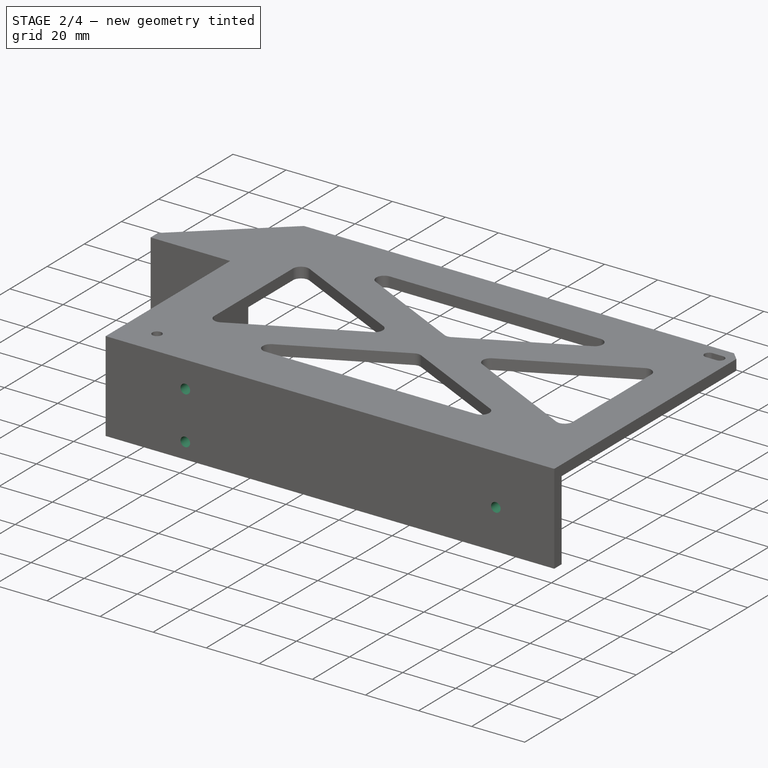
[diagram: stage 2 of 4 — iso view after this stage's code; geometry added in this stage tinted green]
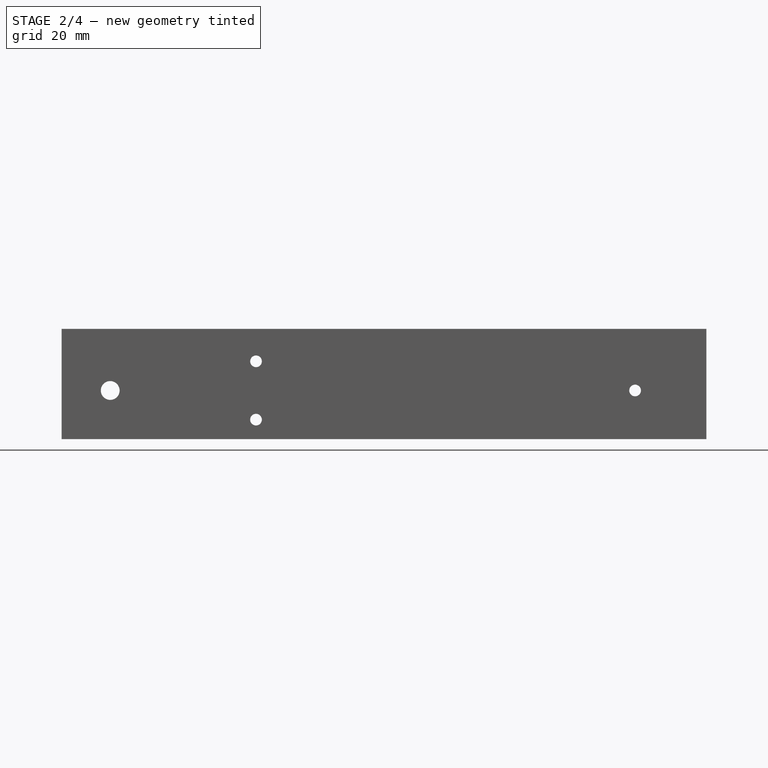
[diagram: stage 2 of 4 — front view after this stage's code; geometry added in this stage tinted green]
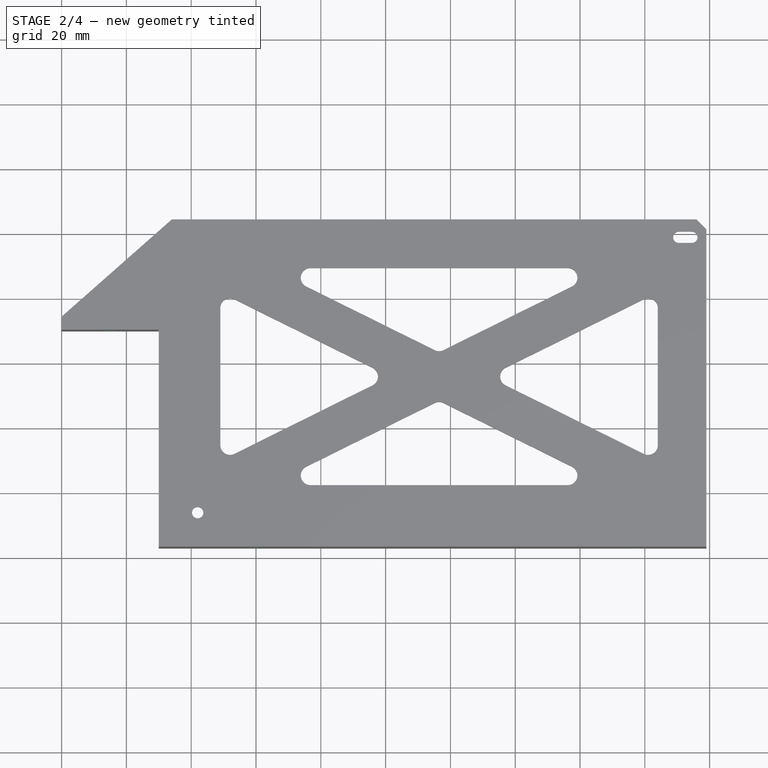
[diagram: stage 2 of 4 — top view after this stage's code; geometry added in this stage tinted green]
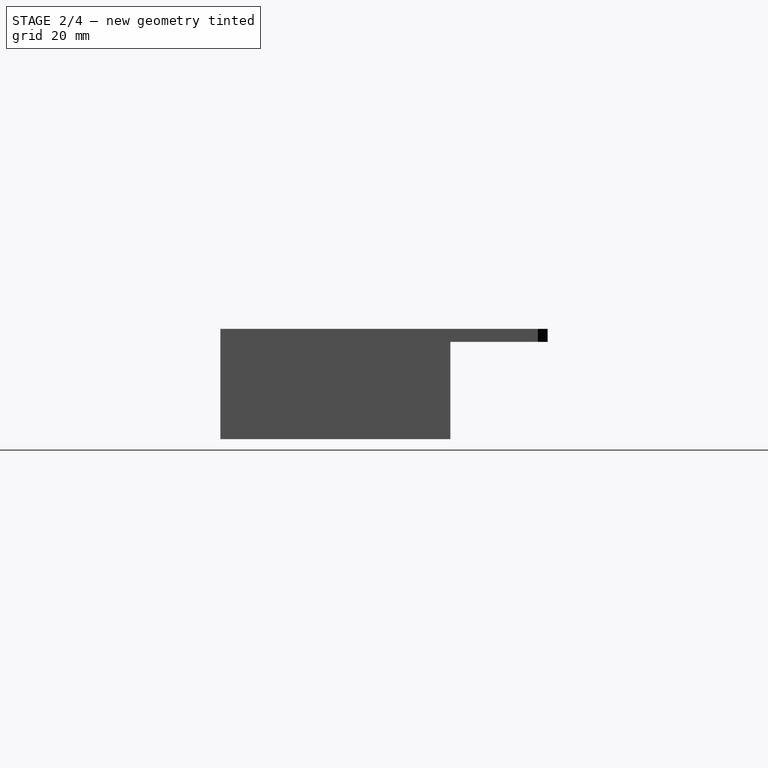
[diagram: stage 2 of 4 — right view after this stage's code; geometry added in this stage tinted green]
FEATURE [Sketcher::SketchObject] Sketch004
  ArcFitTolerance = 1e-06
  FullyConstrained = true
  MakeInternals = false
  MapMode = 5
  Placement = pos=(0,64,0) rot=(0,0.707107,0.707107;3.14159rad)
  sketch-geometry (10):
    g0: LineSegment [constr] StartX=0 StartY=0 StartZ=0 EndX=0 EndY=4 EndZ=0
    g1: LineSegment [constr] StartX=0 StartY=4 StartZ=0 EndX=-30 EndY=4 EndZ=0
    g2: LineSegment [constr] StartX=-30 StartY=4 StartZ=0 EndX=-30 EndY=0 EndZ=0
    g3: LineSegment [constr] StartX=-30 StartY=0 StartZ=0 EndX=0 EndY=0 EndZ=0
    g4: LineSegment [constr] StartX=0 StartY=4 StartZ=0 EndX=0 EndY=34 EndZ=0
    g5: LineSegment [constr] StartX=0 StartY=34 StartZ=0 EndX=-30 EndY=34 EndZ=0
    g6: LineSegment [constr] StartX=-30 StartY=34 StartZ=0 EndX=-30 EndY=4 EndZ=0
    g7: LineSegment [constr] StartX=-30 StartY=4 StartZ=0 EndX=0 EndY=4 EndZ=0
    g8: LineSegment [constr] StartX=-30 StartY=34 StartZ=0 EndX=-1.6e-15 EndY=4 EndZ=0
    g9: Circle CenterX=-15 CenterY=19 CenterZ=0 NormalX=0 NormalY=0 NormalZ=1 AngleXU=0 Radius=2.5
  constraints (26):
    c: Coincident(g0,g1)
    c: Coincident(g1,g2)
    c: Coincident(g2,g3)
    c: Coincident(g3,g0)
    c: Vertical(g0)
    c: Vertical(g2)
    c: Horizontal(g1)
    c: Horizontal(g3)
    c: Distance(g0,g2) = 30
    c: Distance(g1,g3) = 4
    c: Coincident(g0,g-1)
    c: Coincident(g4,g5)
    c: Coincident(g5,g6)
    c: Coincident(g6,g7)
    c: Coincident(g7,g4)
    c: Vertical(g4)
    c: Vertical(g6)
    c: Horizontal(g5)
    c: Horizontal(g7)
    c: Distance(g4,g6) = 30
    c: Distance(g5,g7) = 30
    c: Coincident(g4,g0)
    c: Coincident(g8,g5)
    c: Coincident(g8,g0)
    c: Diameter(g9) = 5
    c: Symmetric(g8,g8,g9)
FEATURE [Sketcher::SketchObject] Sketch005
  ArcFitTolerance = 1e-06
  AttachmentSupport = -> [Pad001]
  FullyConstrained = true
  MakeInternals = false
  MapMode = 5
  Placement = pos=(0,0,0) rot=(1,0,0;3.14159rad)
FEATURE [PartDesign::Chamfer] Chamfer
  Angle = 45
  Base = -> Fillet [Edge51]
  BaseFeature = -> Fillet
  ChamferType = 0
  FlipDirection = false
  Refine = true
  Size = 3
  Size2 = 1
  SupportTransform = false
  Suppressed = false
  UseAllEdges = false
FEATURE [Sketcher::SketchObject] Sketch006
  ArcFitTolerance = 1e-06
  AttachmentSupport = -> [Chamfer]
  FullyConstrained = true
  MakeInternals = false
  MapMode = 5
  Placement = pos=(0,34,0) rot=(0,0.707107,0.707107;3.14159rad)
  sketch-geometry (10):
    g0: LineSegment [constr] StartX=0 StartY=0 StartZ=0 EndX=-34 EndY=0 EndZ=0
    g1: LineSegment [constr] StartX=-34 StartY=0 StartZ=0 EndX=-34 EndY=-30 EndZ=0
    g2: LineSegment [constr] StartX=-34 StartY=-30 StartZ=0 EndX=0 EndY=-30 EndZ=0
    g3: LineSegment [constr] StartX=0 StartY=-30 StartZ=0 EndX=0 EndY=0 EndZ=0
    g4: LineSegment [constr] StartX=-34 StartY=0 StartZ=0 EndX=-34 EndY=-30 EndZ=0
    g5: LineSegment [constr] StartX=-34 StartY=-30 StartZ=0 EndX=-30 EndY=-30 EndZ=0
    g6: LineSegment [constr] StartX=-30 StartY=-30 StartZ=0 EndX=-30 EndY=0 EndZ=0
    g7: LineSegment [constr] StartX=-30 StartY=0 StartZ=0 EndX=-34 EndY=0 EndZ=0
    g8: LineSegment [constr] StartX=-30 StartY=0 StartZ=0 EndX=-1.6e-15 EndY=-30 EndZ=0
    g9: Circle CenterX=-15 CenterY=-15 CenterZ=0 NormalX=0 NormalY=0 NormalZ=1 AngleXU=0 Radius=2.75
  constraints (26):
    c: Coincident(g0,g1)
    c: Coincident(g1,g2)
    c: Coincident(g2,g3)
    c: Coincident(g3,g0)
    c: Horizontal(g0)
    c: Horizontal(g2)
    c: Vertical(g1)
    c: Vertical(g3)
    c: Distance(g1,g3) = 34
    c: Distance(g0,g2) = 30
    c: Coincident(g0,g-1)
    c: Coincident(g4,g5)
    c: Coincident(g5,g6)
    c: Coincident(g6,g7)
    c: Coincident(g7,g4)
    c: Vertical(g4)
    c: Vertical(g6)
    c: Horizontal(g5)
    c: Horizontal(g7)
    c: Distance(g4,g6) = 4
    c: Coincident(g4,g0)
    c: PointOnObject(g5,g2)
    c: Coincident(g8,g6)
    c: Coincident(g8,g2)
    c: Diameter(g9) = 5.5
    c: Symmetric(g8,g8,g9)
FEATURE [PartDesign::Hole] Hole
  BaseFeature = -> Chamfer
  CustomThreadClearance = 0
  Depth = 25
  DepthType = 0
  Diameter = 5.8
  DrillForDepth = false
  DrillPoint = 1
  DrillPointAngle = 118
  HoleCutCountersinkAngle = 90
  HoleCutCustomValues = false
  HoleCutDepth = 0
  HoleCutDiameter = 6.1
  HoleCutType = 0
  ModelThread = false
  Profile = -> Sketch006
  Refine = true
  Suppressed = false
  Tapered = false
  TaperedAngle = 90
  ThreadClass = 0
  ThreadDepth = 25
  ThreadDepthType = 0
  ThreadDirection = 0
  ThreadFit = 2
  ThreadSize = 13
  ThreadType = 1
  Threaded = false
  UseCustomThreadClearance = false
FEATURE [Sketcher::SketchObject] Sketch007
  ArcFitTolerance = 1e-06
  AttachmentSupport = -> [Hole]
  FullyConstrained = true
  MakeInternals = false
  MapMode = 5
  Placement = pos=(0,-33,0) rot=(0,0.707107,0.707107;3.14159rad)
  sketch-geometry (16):
    g0: LineSegment [constr] StartX=0 StartY=0 StartZ=0 EndX=-34 EndY=0 EndZ=0
    g1: LineSegment [constr] StartX=-34 StartY=0 StartZ=0 EndX=-34 EndY=-26 EndZ=0
    g2: LineSegment [constr] StartX=-34 StartY=-26 StartZ=0 EndX=0 EndY=-26 EndZ=0
    g3: LineSegment [constr] StartX=0 StartY=-26 StartZ=0 EndX=0 EndY=0 EndZ=0
    g4: LineSegment [constr] StartX=-34 StartY=0 StartZ=0 EndX=-199 EndY=0 EndZ=0
    g5: LineSegment [constr] StartX=-199 StartY=0 StartZ=0 EndX=-199 EndY=-30 EndZ=0
    g6: LineSegment [constr] StartX=-199 StartY=-30 StartZ=0 EndX=-34 EndY=-30 EndZ=0
    g7: LineSegment [constr] StartX=-34 StartY=-30 StartZ=0 EndX=-34 EndY=0 EndZ=0
    g8: LineSegment [constr] StartX=-199 StartY=0 StartZ=0 EndX=-177 EndY=0 EndZ=0
    g9: LineSegment [constr] StartX=-177 StartY=0 StartZ=0 EndX=-60 EndY=0 EndZ=0
    g10: LineSegment [constr] StartX=-177 StartY=0 StartZ=0 EndX=-177 EndY=-15 EndZ=0
    g11: LineSegment [constr] StartX=-60 StartY=0 StartZ=0 EndX=-60 EndY=-6 EndZ=0
    g12: LineSegment [constr] StartX=-60 StartY=-6 StartZ=0 EndX=-60 EndY=-24 EndZ=0
    g13: Circle CenterX=-177 CenterY=-15 CenterZ=0 NormalX=0 NormalY=0 NormalZ=1 AngleXU=0 Radius=1.5
    g14: Circle CenterX=-60 CenterY=-6 CenterZ=0 NormalX=0 NormalY=0 NormalZ=1 AngleXU=0 Radius=1.5
    g15: Circle CenterX=-60 CenterY=-24 CenterZ=0 NormalX=0 NormalY=0 NormalZ=1 AngleXU=0 Radius=1.5
  constraints (43):
    c: Coincident(g0,g1)
    c: Coincident(g1,g2)
    c: Coincident(g2,g3)
    c: Coincident(g3,g0)
    c: Horizontal(g0)
    c: Horizontal(g2)
    c: Vertical(g1)
    c: Vertical(g3)
    c: Distance(g1,g3) = 34
    c: Distance(g0,g2) = 26
    c: Coincident(g0,g-1)
    c: Coincident(g4,g5)
    c: Coincident(g5,g6)
    c: Coincident(g6,g7)
    c: Coincident(g7,g4)
    c: Horizontal(g4)
    c: Horizontal(g6)
    c: Vertical(g5)
    c: Vertical(g7)
    c: Distance(g5,g7) = 165
    c: Distance(g4,g6) = 30
    c: Coincident(g4,g0)
    c: Distance(g8) = 22
    c: Coincident(g8,g4)
    c: PointOnObject(g8,g4)
    c: Distance(g9) = 117
    c: Coincident(g9,g8)
    c: PointOnObject(g9,g4)
    c: Distance(g10) = 15
    c: Coincident(g10,g8)
    c: Vertical(g10)
    c: Distance(g11) = 6
    c: Coincident(g11,g9)
    c: Vertical(g11)
    c: Distance(g12) = 18
    c: Coincident(g12,g11)
    c: Vertical(g12)
    c: Diameter(g13) = 3
    c: Coincident(g13,g10)
    c: Diameter(g14) = 3
    c: Coincident(g14,g11)
    c: Diameter(g15) = 3
    c: Coincident(g15,g12)
FEATURE [PartDesign::Hole] Hole001
  BaseFeature = -> Hole
  CustomThreadClearance = 0
  Depth = 25
  DepthType = 0
  Diameter = 3.6
  DrillForDepth = false
  DrillPoint = 1
  DrillPointAngle = 118
  HoleCutCountersinkAngle = 90
  HoleCutCustomValues = false
  HoleCutDepth = 0
  HoleCutDiameter = 6.1
  HoleCutType = 0
  ModelThread = false
  Profile = -> Sketch007
  Refine = true
  Suppressed = false
  Tapered = false
  TaperedAngle = 90
  ThreadClass = 0
  ThreadDepth = 25
  ThreadDepthType = 0
  ThreadDirection = 0
  ThreadFit = 2
  ThreadSize = 9
  ThreadType = 1
  Threaded = false
  UseCustomThreadClearance = false
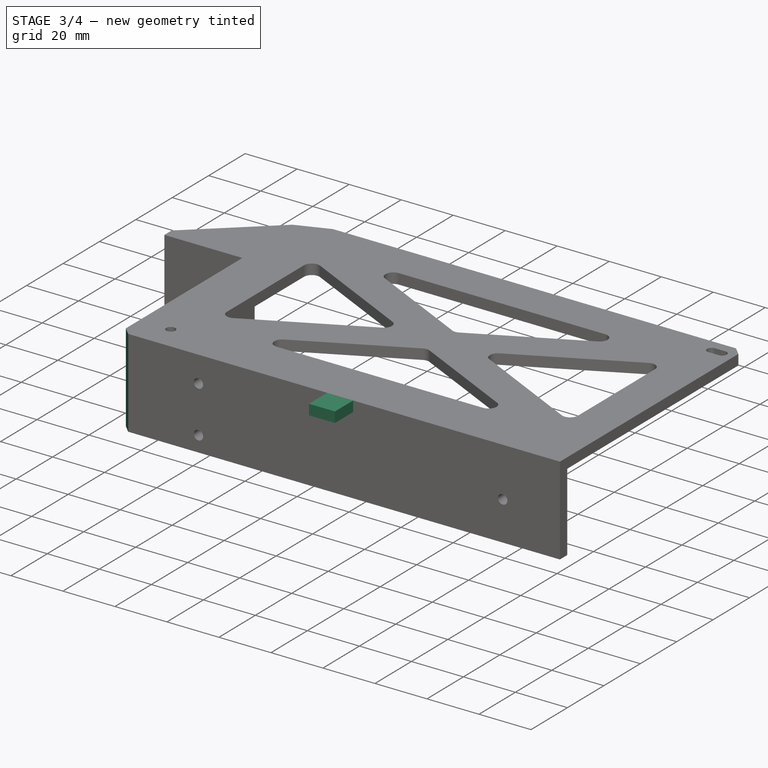
[diagram: stage 3 of 4 — iso view after this stage's code; geometry added in this stage tinted green]
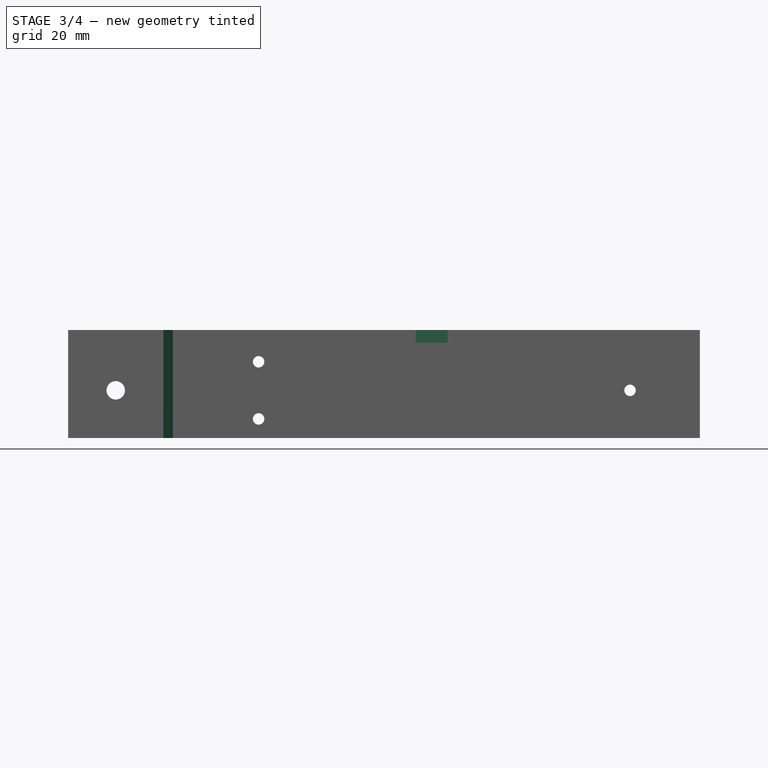
[diagram: stage 3 of 4 — front view after this stage's code; geometry added in this stage tinted green]
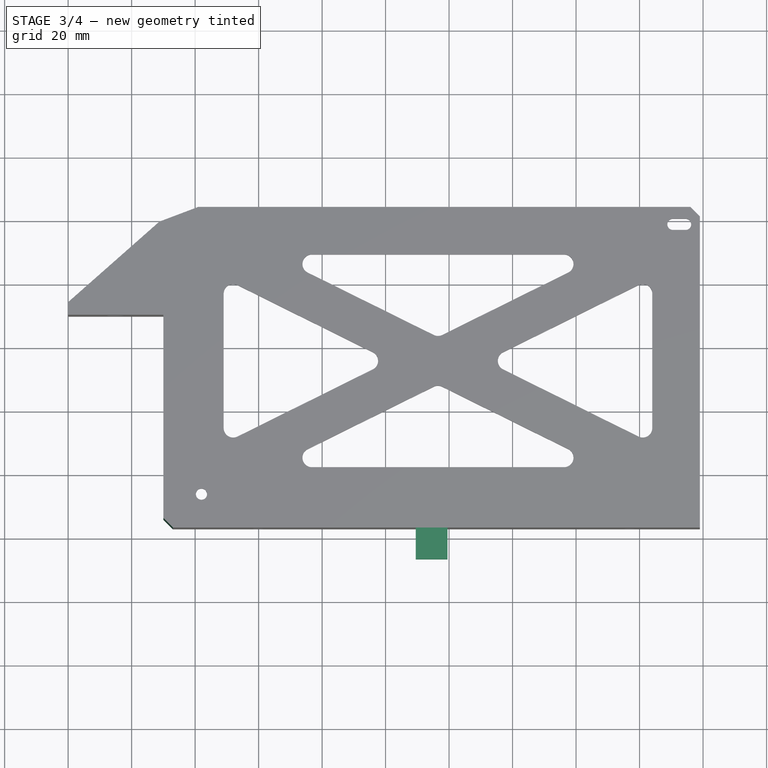
[diagram: stage 3 of 4 — top view after this stage's code; geometry added in this stage tinted green]
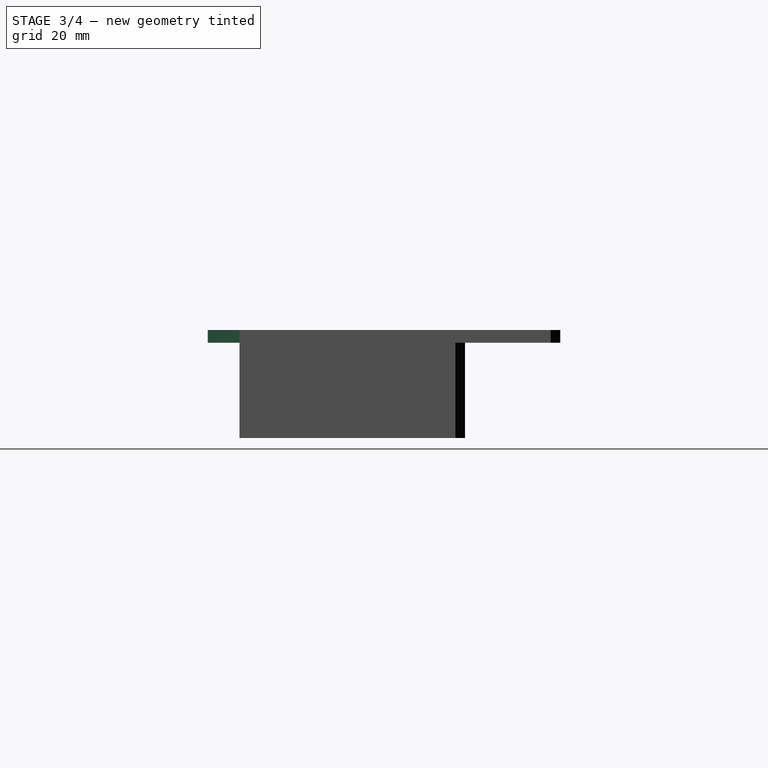
[diagram: stage 3 of 4 — right view after this stage's code; geometry added in this stage tinted green]
FEATURE [PartDesign::Chamfer] Chamfer001
  Angle = 45
  Base = -> Hole001 [Edge125,Edge49]
  BaseFeature = -> Hole001
  ChamferType = 0
  FlipDirection = false
  Refine = true
  Size = 3
  Size2 = 1
  SupportTransform = false
  Suppressed = false
  UseAllEdges = false
FEATURE [PartDesign::Chamfer] Chamfer002
  Angle = 45
  Base = -> Chamfer001 [Edge45]
  BaseFeature = -> Chamfer001
  ChamferType = 0
  FlipDirection = false
  Refine = true
  Size = 7
  Size2 = 1
  SupportTransform = false
  Suppressed = false
  UseAllEdges = false
FEATURE [Sketcher::SketchObject] Sketch008
  ArcFitTolerance = 1e-06
  AttachmentSupport = -> [Chamfer002]
  FullyConstrained = true
  MakeInternals = false
  MapMode = 5
  Placement = pos=(0,0,4) rot=(0,0,1;0rad)
  sketch-geometry (10):
    g0: LineSegment [constr] StartX=0 StartY=0 StartZ=0 EndX=0 EndY=-37 EndZ=0
    g1: LineSegment [constr] StartX=0 StartY=-37 StartZ=0 EndX=30 EndY=-37 EndZ=0
    g2: LineSegment [constr] StartX=30 StartY=-37 StartZ=0 EndX=30 EndY=0 EndZ=0
    g3: LineSegment [constr] StartX=30 StartY=0 StartZ=0 EndX=0 EndY=0 EndZ=0
    g4: LineSegment [constr] StartX=30 StartY=-37 StartZ=0 EndX=114.5 EndY=-37 EndZ=0
    g5: LineSegment [constr] StartX=114.5 StartY=-37 StartZ=0 EndX=119.5 EndY=-37 EndZ=0
    g6: LineSegment StartX=119.5 StartY=-37 StartZ=0 EndX=109.5 EndY=-37 EndZ=0
    g7: LineSegment StartX=109.5 StartY=-37 StartZ=0 EndX=109.5 EndY=-47 EndZ=0
    g8: LineSegment StartX=109.5 StartY=-47 StartZ=0 EndX=119.5 EndY=-47 EndZ=0
    g9: LineSegment StartX=119.5 StartY=-47 StartZ=0 EndX=119.5 EndY=-37 EndZ=0
  constraints (28):
    c: Coincident(g0,g1)
    c: Coincident(g1,g2)
    c: Coincident(g2,g3)
    c: Coincident(g3,g0)
    c: Vertical(g0)
    c: Vertical(g2)
    c: Horizontal(g1)
    c: Horizontal(g3)
    c: Distance(g0,g2) = 30
    c: Distance(g1,g3) = 37
    c: Coincident(g0,g-1)
    c: Distance(g4) = 84.5
    c: Coincident(g4,g1)
    c: Horizontal(g4)
    c: Distance(g5) = 5
    c: Coincident(g5,g4)
    c: Horizontal(g5)
    c: Coincident(g6,g7)
    c: Coincident(g7,g8)
    c: Coincident(g8,g9)
    c: Coincident(g9,g6)
    c: Horizontal(g6)
    c: Horizontal(g8)
    c: Vertical(g7)
    c: Vertical(g9)
    c: Distance(g7,g9) = 10
    c: Distance(g6,g8) = 10
    c: Coincident(g6,g5)
FEATURE [PartDesign::Pad] Pad002
  BaseFeature = -> Chamfer002
  Direction = (0,0,1)
  Length = 4
  Length2 = 10
  Profile = -> Sketch008
  ReferenceAxis = -> Sketch008 [N_Axis]
  Refine = true
  Reversed = true
  Suppressed = false
  Type = 0
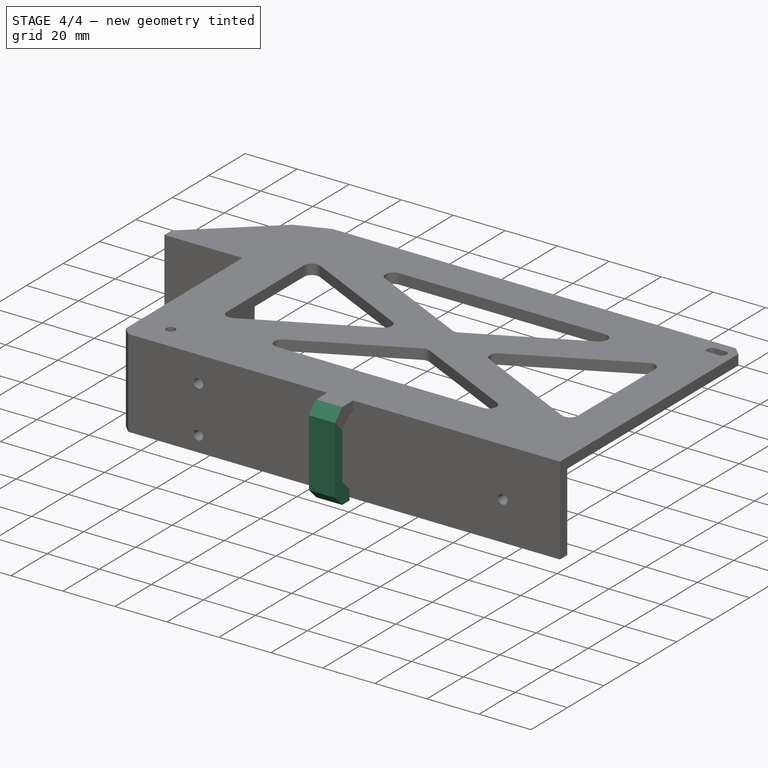
[diagram: stage 4 of 4 — iso view after this stage's code; geometry added in this stage tinted green]
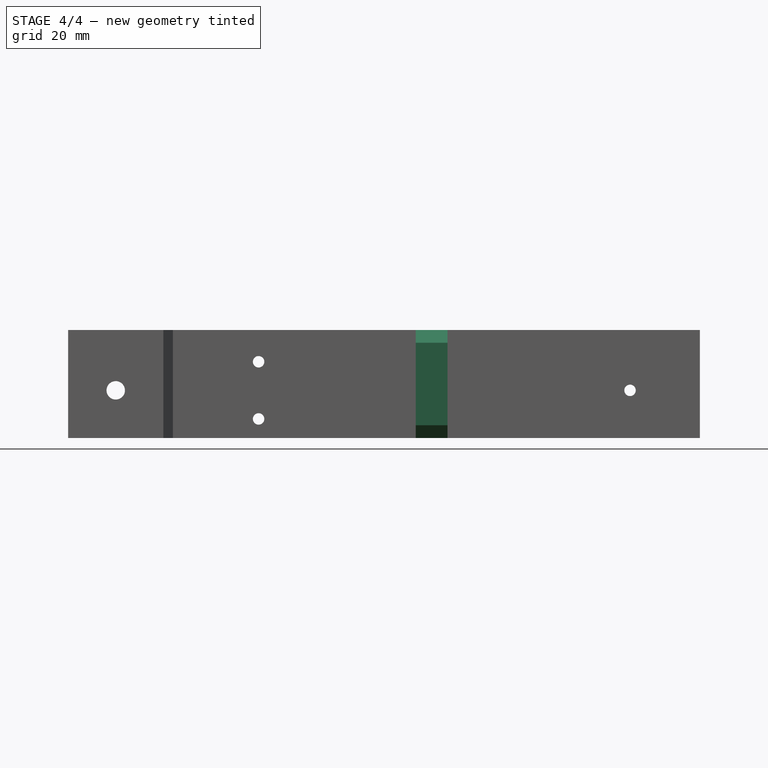
[diagram: stage 4 of 4 — front view after this stage's code; geometry added in this stage tinted green]
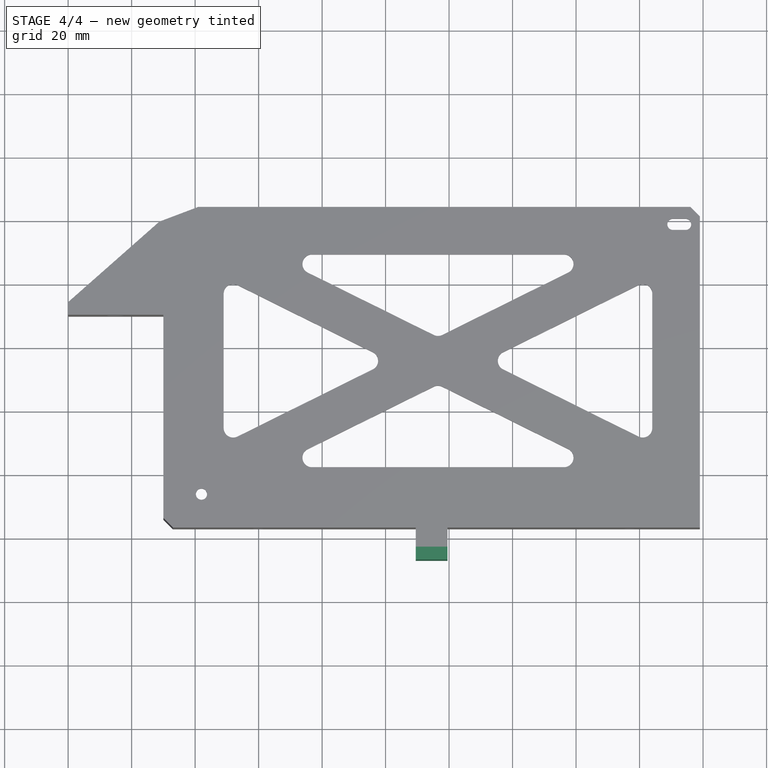
[diagram: stage 4 of 4 — top view after this stage's code; geometry added in this stage tinted green]
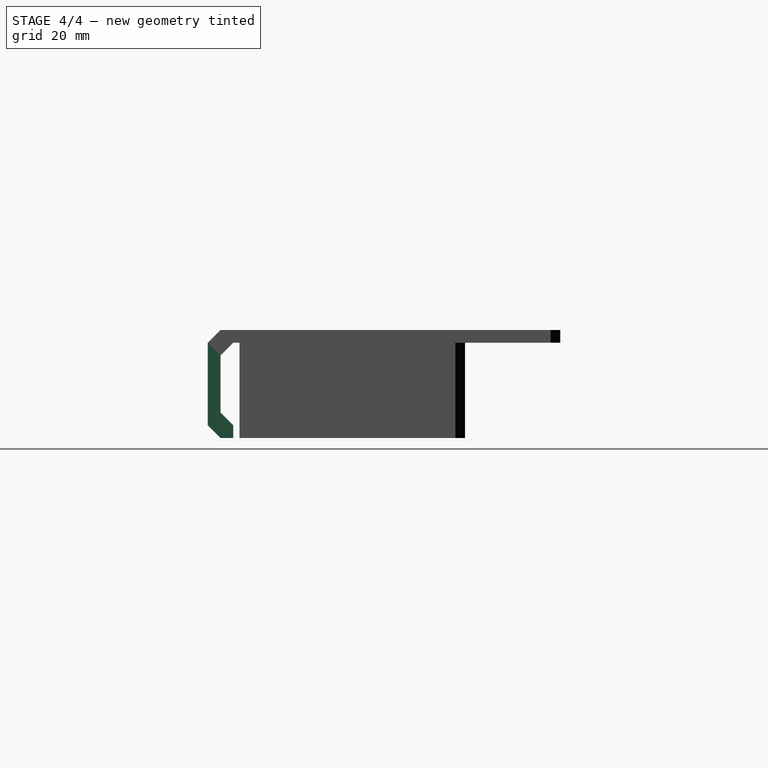
[diagram: stage 4 of 4 — right view after this stage's code; geometry added in this stage tinted green]
FEATURE [Sketcher::SketchObject] Sketch009
  ArcFitTolerance = 1e-06
  AttachmentSupport = -> [Pad002]
  FullyConstrained = true
  MakeInternals = false
  MapMode = 5
  Placement = pos=(0,0,0) rot=(1,0,0;3.14159rad)
  sketch-geometry (9):
    g0: LineSegment [constr] StartX=0 StartY=0 StartZ=0 EndX=109.5 EndY=0 EndZ=0
    g1: LineSegment [constr] StartX=109.5 StartY=0 StartZ=0 EndX=109.5 EndY=37 EndZ=0
    g2: LineSegment [constr] StartX=109.5 StartY=37 StartZ=0 EndX=0 EndY=37 EndZ=0
    g3: LineSegment [constr] StartX=0 StartY=37 StartZ=0 EndX=0 EndY=0 EndZ=0
    g4: LineSegment [constr] StartX=109.5 StartY=37 StartZ=0 EndX=109.5 EndY=43 EndZ=0
    g5: LineSegment StartX=109.5 StartY=43 StartZ=0 EndX=119.5 EndY=43 EndZ=0
    g6: LineSegment StartX=119.5 StartY=43 StartZ=0 EndX=119.5 EndY=47 EndZ=0
    g7: LineSegment StartX=119.5 StartY=47 StartZ=0 EndX=109.5 EndY=47 EndZ=0
    g8: LineSegment StartX=109.5 StartY=47 StartZ=0 EndX=109.5 EndY=43 EndZ=0
  constraints (25):
    c: Coincident(g0,g1)
    c: Coincident(g1,g2)
    c: Coincident(g2,g3)
    c: Coincident(g3,g0)
    c: Horizontal(g0)
    c: Horizontal(g2)
    c: Vertical(g1)
    c: Vertical(g3)
    c: Distance(g1,g3) = 109.5
    c: Distance(g0,g2) = 37
    c: Coincident(g0,g-1)
    c: Distance(g4) = 6
    c: Coincident(g4,g1)
    c: Vertical(g4)
    c: Coincident(g5,g6)
    c: Coincident(g6,g7)
    c: Coincident(g7,g8)
    c: Coincident(g8,g5)
    c: Horizontal(g5)
    c: Horizontal(g7)
    c: Vertical(g6)
    c: Vertical(g8)
    c: Distance(g6,g8) = 10
    c: Distance(g5,g7) = 4
    c: Coincident(g5,g4)
FEATURE [PartDesign::Pad] Pad003
  BaseFeature = -> Pad002
  Direction = (0,0,-1)
  Length = 30
  Length2 = 10
  Profile = -> Sketch009
  ReferenceAxis = -> Sketch009 [N_Axis]
  Refine = true
  Suppressed = false
  Type = 0
FEATURE [Sketcher::SketchObject] Sketch010
  ArcFitTolerance = 1e-06
  AttachmentSupport = -> [Pad003]
  FullyConstrained = true
  MakeInternals = false
  MapMode = 5
  Placement = pos=(0,-43,0) rot=(0,0.707107,0.707107;3.14159rad)
  sketch-geometry (8):
    g0: LineSegment [constr] StartX=0 StartY=0 StartZ=0 EndX=-109.5 EndY=0 EndZ=0
    g1: LineSegment [constr] StartX=-109.5 StartY=0 StartZ=0 EndX=-109.5 EndY=-30 EndZ=0
    g2: LineSegment [constr] StartX=-109.5 StartY=-30 StartZ=0 EndX=0 EndY=-30 EndZ=0
    g3: LineSegment [constr] StartX=0 StartY=-30 StartZ=0 EndX=0 EndY=0 EndZ=0
    g4: LineSegment StartX=-109.5 StartY=-30 StartZ=0 EndX=-109.5 EndY=-26 EndZ=0
    g5: LineSegment StartX=-109.5 StartY=-26 StartZ=0 EndX=-119.5 EndY=-26 EndZ=0
    g6: LineSegment StartX=-119.5 StartY=-26 StartZ=0 EndX=-119.5 EndY=-30 EndZ=0
    g7: LineSegment StartX=-119.5 StartY=-30 StartZ=0 EndX=-109.5 EndY=-30 EndZ=0
  constraints (22):
    c: Coincident(g0,g1)
    c: Coincident(g1,g2)
    c: Coincident(g2,g3)
    c: Coincident(g3,g0)
    c: Horizontal(g0)
    c: Horizontal(g2)
    c: Vertical(g1)
    c: Vertical(g3)
    c: Distance(g1,g3) = 109.5
    c: Distance(g0,g2) = 30
    c: Coincident(g0,g-1)
    c: Coincident(g4,g5)
    c: Coincident(g5,g6)
    c: Coincident(g6,g7)
    c: Coincident(g7,g4)
    c: Vertical(g4)
    c: Vertical(g6)
    c: Horizontal(g5)
    c: Horizontal(g7)
    c: Distance(g4,g6) = 10
    c: Distance(g5,g7) = 4
    c: Coincident(g4,g1)
FEATURE [PartDesign::Pad] Pad004
  BaseFeature = -> Pad003
  Direction = (0,1,-2e-16)
  Length = 4
  Length2 = 10
  Profile = -> Sketch010
  ReferenceAxis = -> Sketch010 [N_Axis]
  Refine = true
  Suppressed = false
  Type = 0
FEATURE [PartDesign::Chamfer] Chamfer003
  Angle = 45
  Base = -> Pad004 [Edge130,Edge152,Edge158,Edge155]
  BaseFeature = -> Pad004
  ChamferType = 0
  FlipDirection = false
  Refine = true
  Size = 3.99
  Size2 = 1
  SupportTransform = false
  Suppressed = false
  UseAllEdges = false
FEATURE [PartDesign::Body] Body  label="power-supply-bracket-body"
  AllowCompound = false
  Group = -> [Sketch,Pad,Sketch001,Pad001,Fillet,Sketch004,Sketch005,Chamfer,Sketch006,Hole,Sketch007,Hole001,Chamfer001,Chamfer002,Sketch008,Pad002,Sketch009,Pad003,Sketch010,Pad004,Chamfer003]
  Origin = -> Origin
  Tip = -> Chamfer003
FEATURE [App::Part] Part  label="power-supply-bracket-part"
  Group = -> [Body]
  Origin = -> Origin001
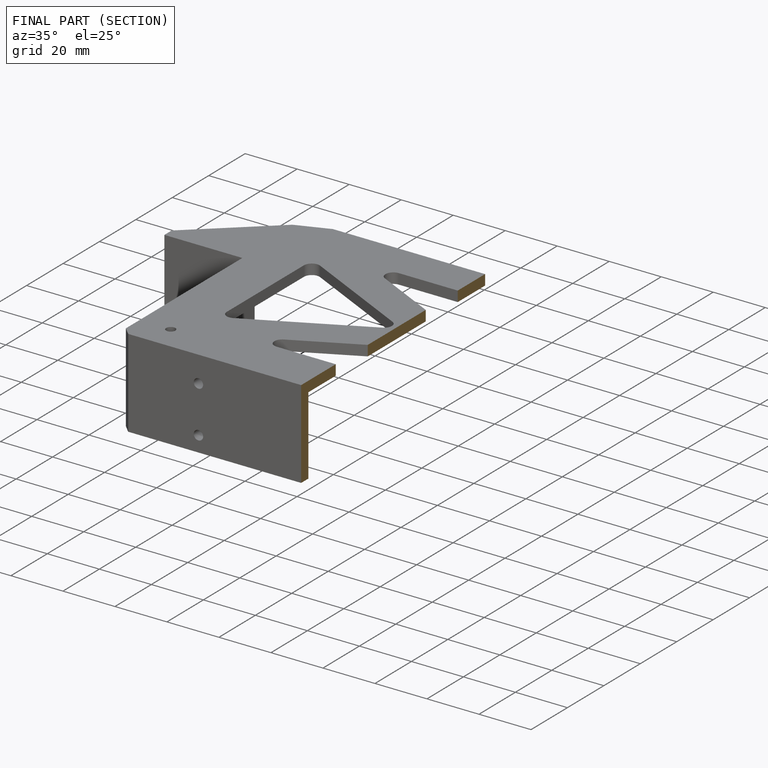
[diagram: finished part — half-section view (interior)]
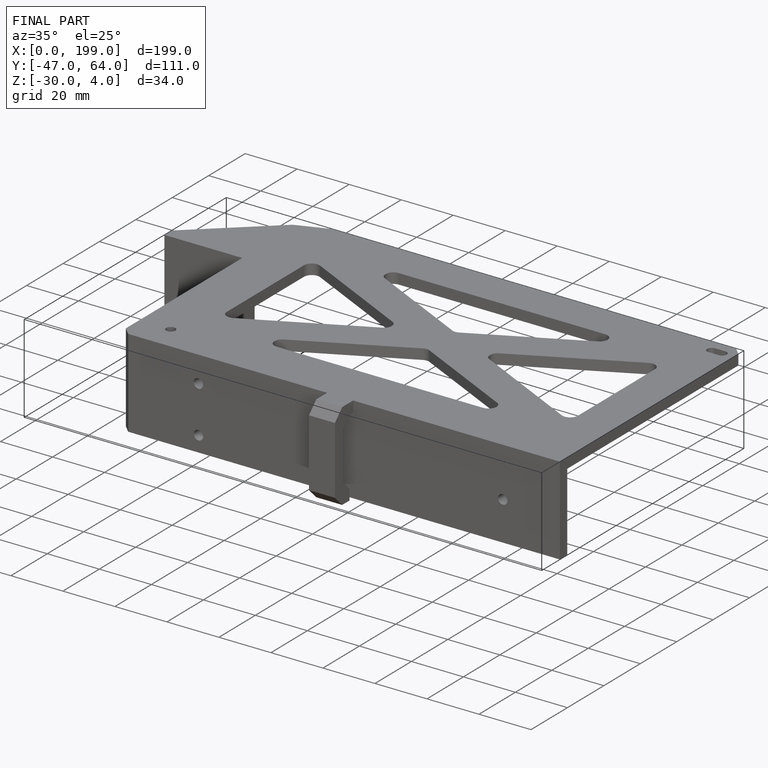
[diagram: finished part — iso view with bounding-box wireframe]
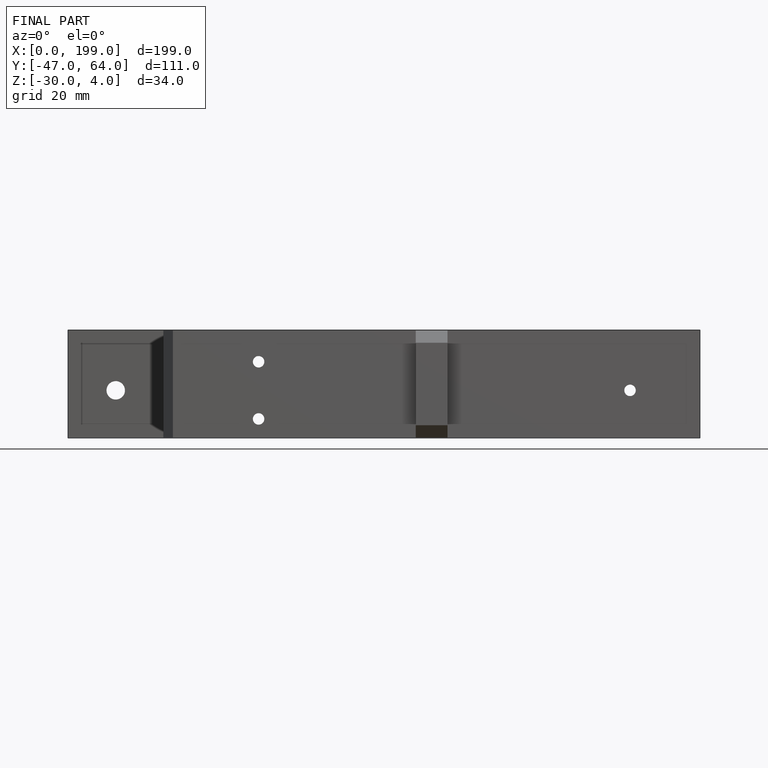
[diagram: finished part — front view with bounding-box wireframe]
